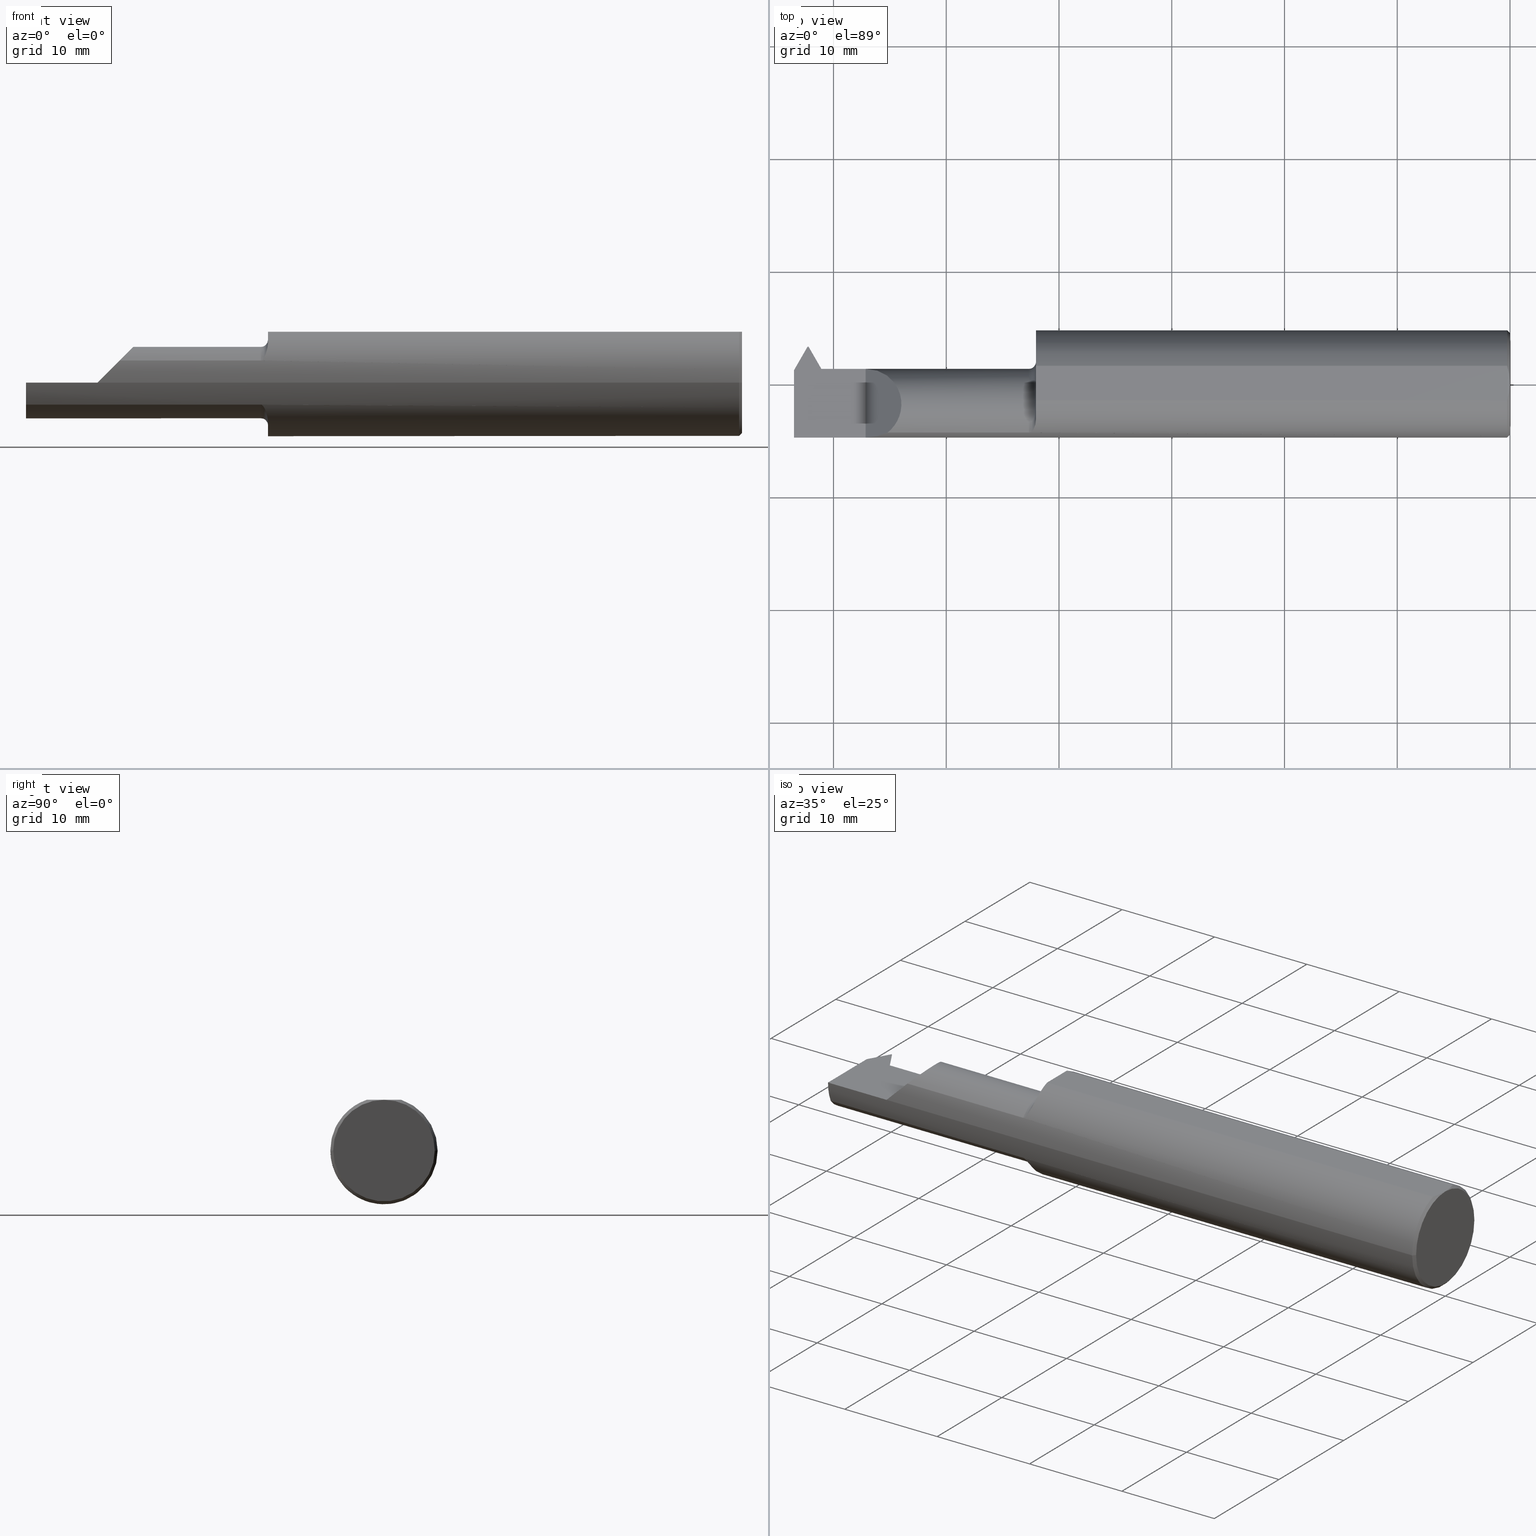
[diagram: canonical four-view strip — front | top / right | iso, engineering-drawing reading convention]
A machine part, canonical four-view strip (front | top / right | iso — engineering-drawing reading convention). The complete STEP part file that produces these views, byte-faithful:
ISO-10303-21;
HEADER;
FILE_DESCRIPTION (( 'STEP AP203' ),
    '1' );
FILE_NAME ('231891-LHTT320750.STEP',
    '2025-01-27T21:58:05',
    ( '' ),
    ( '' ),
    'SwSTEP 2.0',
    'SolidWorks 2024',
    '' );
FILE_SCHEMA (( 'CONFIG_CONTROL_DESIGN' ));
ENDSEC;

DATA;
#1 = EDGE_CURVE ( 'NONE', #763, #613, #610, .T. ) ;
#2 = DATE_AND_TIME ( #677, #97 ) ;
#3 = ORIENTED_EDGE ( 'NONE', *, *, #528, .F. ) ;
#4 = AXIS2_PLACEMENT_3D ( 'NONE', #838, #106, #846 ) ;
#5 = DIRECTION ( 'NONE',  ( 1.218297997402278970E-14, -0.7071067811865430208, -0.7071067811865521247 ) ) ;
#6 = VECTOR ( 'NONE', #79, 39.37007874015748143 ) ;
#7 = ORIENTED_EDGE ( 'NONE', *, *, #272, .F. ) ;
#8 = CARTESIAN_POINT ( 'NONE',  ( -2.500000000000000000, 6.123233995736767268E-17, 0.000000000000000000 ) ) ;
#9 = LINE ( 'NONE', #281, #607 ) ;
#10 = ORIENTED_EDGE ( 'NONE', *, *, #730, .T. ) ;
#11 = EDGE_CURVE ( 'NONE', #196, #712, #334, .T. ) ;
#12 = ADVANCED_FACE ( 'NONE', ( #621 ), #19, .T. ) ;
#13 = DIRECTION ( 'NONE',  ( -1.000000000000000000, 7.807390513315893590E-17, -0.000000000000000000 ) ) ;
#14 = FACE_OUTER_BOUND ( 'NONE', #628, .T. ) ;
#15 = ORIENTED_EDGE ( 'NONE', *, *, #445, .F. ) ;
#16 = CIRCLE ( 'NONE', #519, 0.1873499999999999888 ) ;
#17 = CARTESIAN_POINT ( 'NONE',  ( -2.399466679003209091, 0.05264999999999994684, 0.000000000000000000 ) ) ;
#18 = DIRECTION ( 'NONE',  ( 0.1143501000964209230, 0.1980601832175902521, 0.9734969021171833159 ) ) ;
#19 = PLANE ( 'NONE',  #548 ) ;
#20 = ADVANCED_FACE ( 'NONE', ( #482 ), #349, .F. ) ;
#21 = VECTOR ( 'NONE', #497, 39.37007874015748143 ) ;
#22 = ORIENTED_EDGE ( 'NONE', *, *, #346, .F. ) ;
#23 = CARTESIAN_POINT ( 'NONE',  ( 0.000000000000000000, 3.673940397442058882E-16, 0.000000000000000000 ) ) ;
#24 = DIRECTION ( 'NONE',  ( 0.000000000000000000, 1.000000000000000000, 0.000000000000000000 ) ) ;
#25 = ORIENTED_EDGE ( 'NONE', *, *, #329, .F. ) ;
#26 = AXIS2_PLACEMENT_3D ( 'NONE', #840, #380, #165 ) ;
#27 = CARTESIAN_POINT ( 'NONE',  ( -2.250000000000000000, -0.2500000000000000000, 0.000000000000000000 ) ) ;
#28 = DIRECTION ( 'NONE',  ( -1.251730929182319029E-33, 8.057486188172180538E-17, 1.000000000000000000 ) ) ;
#29 = CARTESIAN_POINT ( 'NONE',  ( -2.399999999999999911, 0.1306499999999998773, 8.875653457662611807E-19 ) ) ;
#30 = ORIENTED_EDGE ( 'NONE', *, *, #31, .T. ) ;
#31 = EDGE_CURVE ( 'NONE', #618, #571, #629, .T. ) ;
#32 = CARTESIAN_POINT ( 'NONE',  ( -2.500000000000000000, 0.2123500000000002053, 0.1773500000000001187 ) ) ;
#33 = AXIS2_PLACEMENT_3D ( 'NONE', #67, #338, #192 ) ;
#34 = CARTESIAN_POINT ( 'NONE',  ( -2.450491526677938126, 0.1160911906293524698, -0.03999999999999956368 ) ) ;
#35 = FACE_OUTER_BOUND ( 'NONE', #233, .T. ) ;
#36 = ORIENTED_EDGE ( 'NONE', *, *, #470, .T. ) ;
#37 = CARTESIAN_POINT ( 'NONE',  ( -2.399466679003209091, 0.05264999999999996072, -0.1250000000000000000 ) ) ;
#38 = CARTESIAN_POINT ( 'NONE',  ( -2.197245014477020586, -0.1817375716013221731, 0.05275498552297869931 ) ) ;
#39 = CARTESIAN_POINT ( 'NONE',  ( -2.409165208596790286, 0.7309542712158816347, 0.6464423631928178926 ) ) ;
#40 = EDGE_LOOP ( 'NONE', ( #433, #25, #30 ) ) ;
#41 = CARTESIAN_POINT ( 'NONE',  ( -2.500000000000000000, 6.123233995736767268E-17, 0.000000000000000000 ) ) ;
#42 = VECTOR ( 'NONE', #844, 39.37007874015748854 ) ;
#43 = PLANE ( 'NONE',  #759 ) ;
#44 = VERTEX_POINT ( 'NONE', #512 ) ;
#45 = PLANE ( 'NONE',  #582 ) ;
#46 = VECTOR ( 'NONE', #176, 39.37007874015748143 ) ;
#47 = VECTOR ( 'NONE', #546, 39.37007874015748143 ) ;
#48 = DIRECTION ( 'NONE',  ( -0.02328694095509177206, 0.3419273951315133786, 0.9394377972167885504 ) ) ;
#49 = ORIENTED_EDGE ( 'NONE', *, *, #470, .F. ) ;
#50 = AXIS2_PLACEMENT_3D ( 'NONE', #741, #28, #235 ) ;
#51 = CARTESIAN_POINT ( 'NONE',  ( -2.450491526677939458, 0.03109119062935314370, -0.1250000000000000000 ) ) ;
#52 = ORIENTED_EDGE ( 'NONE', *, *, #822, .T. ) ;
#53 = DIRECTION ( 'NONE',  ( -1.000000000000000000, -1.224646799147319927E-16, 0.000000000000000000 ) ) ;
#54 = PLANE ( 'NONE',  #533 ) ;
#55 = AXIS2_PLACEMENT_3D ( 'NONE', #65, #189, #476 ) ;
#56 = PERSON_AND_ORGANIZATION_ROLE ( 'creator' ) ;
#57 = VERTEX_POINT ( 'NONE', #772 ) ;
#58 = CARTESIAN_POINT ( 'NONE',  ( -2.399999999999999911, 0.03109119062935314370, -0.1250000000000000000 ) ) ;
#59 = LINE ( 'NONE', #129, #490 ) ;
#60 = EDGE_CURVE ( 'NONE', #63, #547, #147, .T. ) ;
#61 = AXIS2_PLACEMENT_3D ( 'NONE', #245, #525, #312 ) ;
#62 = VECTOR ( 'NONE', #539, 39.37007874015748143 ) ;
#63 = VERTEX_POINT ( 'NONE', #508 ) ;
#64 = PLANE ( 'NONE',  #748 ) ;
#65 = CARTESIAN_POINT ( 'NONE',  ( -1.780551890497774625, -1.028002113284995023, 0.000000000000000000 ) ) ;
#66 = ORIENTED_EDGE ( 'NONE', *, *, #810, .F. ) ;
#67 = CARTESIAN_POINT ( 'NONE',  ( -4.045269286869511293E-16, 0.05265000000001845981, 0.000000000000000000 ) ) ;
#68 = EDGE_CURVE ( 'NONE', #460, #227, #441, .T. ) ;
#69 =( NAMED_UNIT ( * ) PLANE_ANGLE_UNIT ( ) SI_UNIT ( $, .RADIAN. ) );
#70 = ORIENTED_EDGE ( 'NONE', *, *, #171, .F. ) ;
#71 = CYLINDRICAL_SURFACE ( 'NONE', #432, 0.1873499999999999610 ) ;
#72 = DIRECTION ( 'NONE',  ( -1.000000000000000000, 0.000000000000000000, -0.000000000000000000 ) ) ;
#73 = ORIENTED_EDGE ( 'NONE', *, *, #680, .F. ) ;
#74 = PLANE ( 'NONE',  #623 ) ;
#75 = CARTESIAN_POINT ( 'NONE',  ( -2.399466679003209091, -0.04048809197694935857, -0.1249999999999999861 ) ) ;
#76 = PRODUCT_DEFINITION ( 'UNKNOWN', '', #873, #596 ) ;
#77 = CARTESIAN_POINT ( 'NONE',  ( -2.396040671537939648, 0.05265000000000024521, -0.01683936468141946502 ) ) ;
#78 = EDGE_CURVE ( 'NONE', #731, #850, #209, .T. ) ;
#79 = DIRECTION ( 'NONE',  ( 1.000000000000000000, 1.224646799147352961E-16, -0.000000000000000000 ) ) ;
#80 = SHAPE_DEFINITION_REPRESENTATION ( #724, #686 ) ;
#81 = ORIENTED_EDGE ( 'NONE', *, *, #171, .T. ) ;
#82 = VECTOR ( 'NONE', #377, 39.37007874015748854 ) ;
#83 = CARTESIAN_POINT ( 'NONE',  ( -2.399165208596790499, 0.7309542712158816347, 0.6464423631928178926 ) ) ;
#84 = CARTESIAN_POINT ( 'NONE',  ( 5.167234455789520332E-16, -0.01026980879711896812, 0.1773500000000000909 ) ) ;
#85 = EDGE_CURVE ( 'NONE', #137, #571, #839, .T. ) ;
#86 = ORIENTED_EDGE ( 'NONE', *, *, #479, .T. ) ;
#87 = AXIS2_PLACEMENT_3D ( 'NONE', #388, #842, #707 ) ;
#88 = FACE_OUTER_BOUND ( 'NONE', #706, .T. ) ;
#89 = DIRECTION ( 'NONE',  ( -1.224646799147352961E-16, 1.000000000000000000, 0.000000000000000000 ) ) ;
#90 = CIRCLE ( 'NONE', #116, 0.1773500000000004795 ) ;
#91 = DIRECTION ( 'NONE',  ( 1.098490779351302641E-17, -0.7071067811865521247, 0.7071067811865429098 ) ) ;
#92 = ADVANCED_FACE ( 'NONE', ( #832 ), #168, .T. ) ;
#93 = CARTESIAN_POINT ( 'NONE',  ( -1.655422262237692843, -0.1340112273051909386, -0.1311235663431504217 ) ) ;
#94 = CARTESIAN_POINT ( 'NONE',  ( -0.009999999999999049580, -0.1873499999999995724, 2.294375778202565406E-17 ) ) ;
#95 = ORIENTED_EDGE ( 'NONE', *, *, #676, .T. ) ;
#96 = EDGE_CURVE ( 'NONE', #57, #556, #90, .T. ) ;
#97 = LOCAL_TIME ( 13, 58, 5.000000000000000000, #409 ) ;
#98 = CARTESIAN_POINT ( 'NONE',  ( 3.319098987389115832E-17, -0.1773500000000000909, 0.000000000000000000 ) ) ;
#99 = CARTESIAN_POINT ( 'NONE',  ( -1.661433375423614134, -0.1564664892255272222, -0.1032885322714726384 ) ) ;
#100 = PLANE ( 'NONE',  #295 ) ;
#101 = ORIENTED_EDGE ( 'NONE', *, *, #457, .F. ) ;
#102 = DIRECTION ( 'NONE',  ( -1.000000000000000000, 7.807390513315893590E-17, -0.000000000000000000 ) ) ;
#103 = CARTESIAN_POINT ( 'NONE',  ( -1.663468400737659003, -0.1602664485539584682, -0.09726338467661442555 ) ) ;
#104 = DIRECTION ( 'NONE',  ( -0.02328694095508679687, -0.3419273951315134341, -0.9394377972167885504 ) ) ;
#105 = ORIENTED_EDGE ( 'NONE', *, *, #68, .F. ) ;
#106 = DIRECTION ( 'NONE',  ( -1.000000000000000000, 7.807390513315893590E-17, -0.000000000000000000 ) ) ;
#107 = CARTESIAN_POINT ( 'NONE',  ( -2.500000000000000000, -0.03467546208265587931, -0.1191873701057065138 ) ) ;
#108 = EDGE_LOOP ( 'NONE', ( #155, #170, #248, #657 ) ) ;
#109 = AXIS2_PLACEMENT_3D ( 'NONE', #340, #536, #862 ) ;
#110 = ADVANCED_FACE ( 'NONE', ( #361 ), #701, .T. ) ;
#111 = ORIENTED_EDGE ( 'NONE', *, *, #85, .F. ) ;
#112 = CARTESIAN_POINT ( 'NONE',  ( -2.368077295567089902, -0.1116544449213614371, -0.1249999999999999861 ) ) ;
#113 = CARTESIAN_POINT ( 'NONE',  ( -1.655000000000000471, -0.07235000000000012255, 0.000000000000000000 ) ) ;
#114 = PERSON_AND_ORGANIZATION ( #805, #193 ) ;
#115 = ORIENTED_EDGE ( 'NONE', *, *, #353, .F. ) ;
#116 = AXIS2_PLACEMENT_3D ( 'NONE', #376, #641, #89 ) ;
#117 = DIRECTION ( 'NONE',  ( -0.4999999999999884537, -0.8660254037844452579, 8.357947745242410912E-17 ) ) ;
#118 = FACE_OUTER_BOUND ( 'NONE', #551, .T. ) ;
#119 = ORIENTED_EDGE ( 'NONE', *, *, #181, .F. ) ;
#120 = ADVANCED_FACE ( 'NONE', ( #631 ), #294, .F. ) ;
#121 = CARTESIAN_POINT ( 'NONE',  ( -2.451508473322062454, 0.1160911906293514845, -0.04000000000000077105 ) ) ;
#122 = ORIENTED_EDGE ( 'NONE', *, *, #344, .T. ) ;
#123 = FACE_OUTER_BOUND ( 'NONE', #687, .T. ) ;
#124 = VECTOR ( 'NONE', #379, 39.37007874015748143 ) ;
#125 = PLANE ( 'NONE',  #55 ) ;
#126 = ORIENTED_EDGE ( 'NONE', *, *, #216, .T. ) ;
#127 = EDGE_CURVE ( 'NONE', #841, #532, #767, .T. ) ;
#128 = ADVANCED_FACE ( 'NONE', ( #743 ), #427, .T. ) ;
#129 = CARTESIAN_POINT ( 'NONE',  ( -2.458422704432911221, 0.01911539105008689537, -0.1249999999999999861 ) ) ;
#130 = AXIS2_PLACEMENT_3D ( 'NONE', #614, #684, #354 ) ;
#131 = APPROVAL_ROLE ( '' ) ;
#132 = VERTEX_POINT ( 'NONE', #765 ) ;
#133 = CARTESIAN_POINT ( 'NONE',  ( -2.500000000000000000, -0.1873499999999999055, 0.000000000000000000 ) ) ;
#134 = CARTESIAN_POINT ( 'NONE',  ( -2.500000000000000000, -0.07235000000000016418, -0.1249999999999999861 ) ) ;
#135 = CARTESIAN_POINT ( 'NONE',  ( -1.787599684888146134, -1.032071159273469041, -0.04000000000000104861 ) ) ;
#136 = DIRECTION ( 'NONE',  ( 0.8486396879976065843, -0.4899623523104045808, 0.1993679344171975787 ) ) ;
#137 = VERTEX_POINT ( 'NONE', #483 ) ;
#138 = VECTOR ( 'NONE', #588, 39.37007874015748854 ) ;
#139 = DIRECTION ( 'NONE',  ( -1.000000000000000000, -1.224646799147352961E-16, 0.000000000000000000 ) ) ;
#140 = VECTOR ( 'NONE', #144, 39.37007874015748143 ) ;
#141 = ORIENTED_EDGE ( 'NONE', *, *, #96, .T. ) ;
#142 = FACE_OUTER_BOUND ( 'NONE', #40, .T. ) ;
#143 = CARTESIAN_POINT ( 'NONE',  ( -0.0008974174807281316358, -0.02044204845470683207, 0.1773500000000000631 ) ) ;
#144 = DIRECTION ( 'NONE',  ( 0.000000000000000000, 1.000000000000000000, -8.057486188172181771E-17 ) ) ;
#145 = CARTESIAN_POINT ( 'NONE',  ( -1.024723209186555973E-17, 0.1773500000000008403, 2.233143438245201271E-17 ) ) ;
#146 = CARTESIAN_POINT ( 'NONE',  ( -2.250000000000000000, 0.05265000000000022440, 0.000000000000000000 ) ) ;
#147 = LINE ( 'NONE', #157, #639 ) ;
#148 = AXIS2_PLACEMENT_3D ( 'NONE', #384, #102, #779 ) ;
#149 = EDGE_CURVE ( 'NONE', #689, #311, #358, .T. ) ;
#150 = VECTOR ( 'NONE', #865, 39.37007874015748143 ) ;
#151 = CARTESIAN_POINT ( 'NONE',  ( -1.655000000000000471, -0.1232518659284808082, 0.1410992560044136979 ) ) ;
#152 = PLANE ( 'NONE',  #723 ) ;
#153 = CARTESIAN_POINT ( 'NONE',  ( -2.409165208596790286, 0.7309542712158816347, 0.6464423631928178926 ) ) ;
#154 = VECTOR ( 'NONE', #5, 39.37007874015748143 ) ;
#155 = ORIENTED_EDGE ( 'NONE', *, *, #528, .T. ) ;
#156 = DIRECTION ( 'NONE',  ( -1.000000000000000000, 7.807390513315893590E-17, -0.000000000000000000 ) ) ;
#157 = CARTESIAN_POINT ( 'NONE',  ( -1.895948109502243684, 1.094626151390651891, 0.000000000000000000 ) ) ;
#158 = DIRECTION ( 'NONE',  ( -1.000000000000000000, -1.224646799147319927E-16, 0.000000000000000000 ) ) ;
#159 = ORIENTED_EDGE ( 'NONE', *, *, #149, .F. ) ;
#160 = SECURITY_CLASSIFICATION ( '', '', #589 ) ;
#161 = CARTESIAN_POINT ( 'NONE',  ( -2.500000000000000000, -0.06039039658753654616, 0.1773500000000000909 ) ) ;
#162 = ADVANCED_FACE ( 'NONE', ( #560 ), #320, .T. ) ;
#163 = EDGE_CURVE ( 'NONE', #227, #841, #608, .T. ) ;
#164 = DIRECTION ( 'NONE',  ( -1.000000000000000000, 7.807390513315893590E-17, -0.000000000000000000 ) ) ;
#165 = DIRECTION ( 'NONE',  ( 0.000000000000000000, -1.000000000000000000, 2.664535259100375303E-15 ) ) ;
#166 = ORIENTED_EDGE ( 'NONE', *, *, #848, .T. ) ;
#167 = DIRECTION ( 'NONE',  ( 1.000000000000000000, 1.224646799147352961E-16, -0.000000000000000000 ) ) ;
#168 = CYLINDRICAL_SURFACE ( 'NONE', #478, 0.1873499999999999610 ) ;
#169 = DIRECTION ( 'NONE',  ( 0.000000000000000000, 0.7071067811865415775, -0.7071067811865535679 ) ) ;
#170 = ORIENTED_EDGE ( 'NONE', *, *, #829, .T. ) ;
#171 = EDGE_CURVE ( 'NONE', #559, #196, #493, .T. ) ;
#172 = DIRECTION ( 'NONE',  ( 0.000000000000000000, -1.000000000000000000, 0.000000000000000000 ) ) ;
#173 = PRODUCT ( '231891-LHTT320750', '231891-LHTT320750', '', ( #331 ) ) ;
#174 = LINE ( 'NONE', #570, #82 ) ;
#175 = EDGE_LOOP ( 'NONE', ( #141, #549, #450 ) ) ;
#176 = DIRECTION ( 'NONE',  ( 5.520658775337235997E-17, 0.7071067811865535679, 0.7071067811865415775 ) ) ;
#177 = LINE ( 'NONE', #573, #780 ) ;
#178 = COORDINATED_UNIVERSAL_TIME_OFFSET ( 8, 0, .BEHIND. ) ;
#179 = VERTEX_POINT ( 'NONE', #145 ) ;
#180 = DIRECTION ( 'NONE',  ( 1.000000000000000000, -7.807390513315893590E-17, 0.000000000000000000 ) ) ;
#181 = EDGE_CURVE ( 'NONE', #57, #414, #462, .T. ) ;
#182 = LINE ( 'NONE', #728, #710 ) ;
#183 = CIRCLE ( 'NONE', #818, 0.1873499999999999610 ) ;
#184 = ADVANCED_FACE ( 'NONE', ( #285 ), #278, .T. ) ;
#185 = DATE_AND_TIME ( #673, #856 ) ;
#186 = EDGE_LOOP ( 'NONE', ( #637, #467, #341, #498, #254, #777, #682 ) ) ;
#187 = UNCERTAINTY_MEASURE_WITH_UNIT (LENGTH_MEASURE( 1.000000000000000082E-05 ), #725, 'distance_accuracy_value', 'NONE');
#188 = CARTESIAN_POINT ( 'NONE',  ( 1.147187889101284552E-17, 1.404899976408496659E-33, 0.000000000000000000 ) ) ;
#189 = DIRECTION ( 'NONE',  ( -0.8486396879975990348, -0.4899623523104176259, 0.1993679344171976620 ) ) ;
#190 = ORIENTED_EDGE ( 'NONE', *, *, #626, .T. ) ;
#191 = LINE ( 'NONE', #58, #419 ) ;
#192 = DIRECTION ( 'NONE',  ( 0.000000000000000000, -0.1993679344171976064, -0.9799247046208294787 ) ) ;
#193 = ORGANIZATION ( 'UNSPECIFIED', 'UNSPECIFIED', '' ) ;
#194 = ADVANCED_FACE ( 'NONE', ( #223 ), #415, .T. ) ;
#195 = CARTESIAN_POINT ( 'NONE',  ( -1.680000000000000160, -0.1707639599170689693, 0.07706940050007969611 ) ) ;
#196 = VERTEX_POINT ( 'NONE', #17 ) ;
#197 = CARTESIAN_POINT ( 'NONE',  ( -2.300000000000000266, -0.04048809197694935857, -0.1249999999999999861 ) ) ;
#198 = AXIS2_PLACEMENT_3D ( 'NONE', #736, #819, #257 ) ;
#199 = CIRCLE ( 'NONE', #371, 0.1773500000000004795 ) ;
#200 =( NAMED_UNIT ( * ) SI_UNIT ( $, .STERADIAN. ) SOLID_ANGLE_UNIT ( ) );
#201 = AXIS2_PLACEMENT_3D ( 'NONE', #32, #252, #640 ) ;
#202 = ORIENTED_EDGE ( 'NONE', *, *, #383, .F. ) ;
#203 = CARTESIAN_POINT ( 'NONE',  ( -2.500000000000000000, -0.2500000000000000000, 0.000000000000000000 ) ) ;
#204 = ADVANCED_FACE ( 'NONE', ( #88 ), #74, .T. ) ;
#205 = DIMENSIONAL_EXPONENTS ( 1.000000000000000000, 0.000000000000000000, 0.000000000000000000, 0.000000000000000000, 0.000000000000000000, 0.000000000000000000, 0.000000000000000000 ) ;
#206 = DIRECTION ( 'NONE',  ( 7.807390513315893590E-17, 1.000000000000000000, 0.000000000000000000 ) ) ;
#207 = EDGE_CURVE ( 'NONE', #587, #606, #760, .T. ) ;
#208 = CARTESIAN_POINT ( 'NONE',  ( -2.250000000000000000, -0.2500000000000000000, 0.000000000000000000 ) ) ;
#209 = B_SPLINE_CURVE_WITH_KNOTS ( 'NONE', 3,
 ( #246, #843, #781, #309, #634, #574, #304, #103, #99, #698, #437, #93, #518, #569 ),
 .UNSPECIFIED., .F., .F.,
 ( 4, 2, 2, 2, 2, 2, 4 ),
 ( 1.958244471939480462E-07, 0.0001405465607227700199, 0.0002808972969983460598, 0.0005615987695494991695, 0.001123001714651806473, 0.001684404659754113777, 0.002245807604856420864 ),
 .UNSPECIFIED. ) ;
#210 = CARTESIAN_POINT ( 'NONE',  ( -2.389529785684763041, 0.04271310668155375856, -0.04884139106116385659 ) ) ;
#211 = ORIENTED_EDGE ( 'NONE', *, *, #668, .F. ) ;
#212 = CARTESIAN_POINT ( 'NONE',  ( -0.006852151730285416242, 0.05062478141268297177, 0.1773500000000000909 ) ) ;
#213 = CARTESIAN_POINT ( 'NONE',  ( -0.009999999999999073866, -0.06039039658753624085, 0.1773500000000000909 ) ) ;
#214 = VERTEX_POINT ( 'NONE', #151 ) ;
#215 = VECTOR ( 'NONE', #452, 39.37007874015748143 ) ;
#216 = EDGE_CURVE ( 'NONE', #689, #251, #851, .T. ) ;
#217 = VECTOR ( 'NONE', #448, 39.37007874015748143 ) ;
#218 = DIRECTION ( 'NONE',  ( 1.224646799147319927E-16, -1.000000000000000000, 0.000000000000000000 ) ) ;
#219 = LINE ( 'NONE', #363, #595 ) ;
#220 = AXIS2_PLACEMENT_3D ( 'NONE', #500, #754, #820 ) ;
#221 = ORIENTED_EDGE ( 'NONE', *, *, #626, .F. ) ;
#222 = EDGE_LOOP ( 'NONE', ( #237, #773, #243, #119 ) ) ;
#223 = FACE_OUTER_BOUND ( 'NONE', #284, .T. ) ;
#224 = CARTESIAN_POINT ( 'NONE',  ( -2.420783230410803011, 0.02438890395773846489, -0.1389077249179000439 ) ) ;
#225 = CC_DESIGN_PERSON_AND_ORGANIZATION_ASSIGNMENT ( #531, #756, ( #160 ) ) ;
#226 = PERSON_AND_ORGANIZATION ( #805, #193 ) ;
#227 = VERTEX_POINT ( 'NONE', #288 ) ;
#228 = EDGE_CURVE ( 'NONE', #678, #618, #343, .T. ) ;
#229 = APPROVAL_PERSON_ORGANIZATION ( #226, #421, #762 ) ;
#230 = CARTESIAN_POINT ( 'NONE',  ( -0.0009167640511158797918, 0.02059964124962108956, 0.1773500000000000909 ) ) ;
#231 = DIRECTION ( 'NONE',  ( 0.9799247046208295897, -7.650654842620542482E-17, 0.1993679344171976342 ) ) ;
#232 = AXIS2_PLACEMENT_3D ( 'NONE', #113, #156, #172 ) ;
#233 = EDGE_LOOP ( 'NONE', ( #7, #401, #456, #95, #190, #858 ) ) ;
#234 = CARTESIAN_POINT ( 'NONE',  ( -2.399165208596790499, 0.04271310668155458429, -0.04884139106116149043 ) ) ;
#235 = DIRECTION ( 'NONE',  ( 0.000000000000000000, -1.000000000000000000, 8.057486188172180538E-17 ) ) ;
#236 = DIRECTION ( 'NONE',  ( 1.459813011021671533E-17, -0.9396926207859104263, 0.3420201433256632728 ) ) ;
#237 = ORIENTED_EDGE ( 'NONE', *, *, #308, .F. ) ;
#238 = ADVANCED_FACE ( 'NONE', ( #142 ), #611, .F. ) ;
#239 = EDGE_CURVE ( 'NONE', #267, #752, #436, .T. ) ;
#240 = FACE_OUTER_BOUND ( 'NONE', #410, .T. ) ;
#241 = CARTESIAN_POINT ( 'NONE',  ( -2.039733339501604625, -0.1707639599170687750, 0.07706940050007952958 ) ) ;
#242 = CARTESIAN_POINT ( 'NONE',  ( -1.676415813383502984, -0.1703907533020768139, 0.07790009962036420488 ) ) ;
#243 = ORIENTED_EDGE ( 'NONE', *, *, #479, .F. ) ;
#244 = APPROVAL_PERSON_ORGANIZATION ( #738, #395, #131 ) ;
#245 = CARTESIAN_POINT ( 'NONE',  ( 1.147187889101280084E-17, 3.673940397442058882E-16, 0.000000000000000000 ) ) ;
#246 = CARTESIAN_POINT ( 'NONE',  ( -1.680000000000000160, -0.1707639599170690248, -0.07706940050007969611 ) ) ;
#247 = CARTESIAN_POINT ( 'NONE',  ( -2.307739629002622195, -0.03907705000058617206, -0.4508528547498036887 ) ) ;
#248 = ORIENTED_EDGE ( 'NONE', *, *, #757, .T. ) ;
#249 = CARTESIAN_POINT ( 'NONE',  ( -0.009999999999999073866, 0.06039039658753692086, 0.1773500000000000909 ) ) ;
#250 = FACE_OUTER_BOUND ( 'NONE', #108, .T. ) ;
#251 = VERTEX_POINT ( 'NONE', #690 ) ;
#252 = DIRECTION ( 'NONE',  ( -2.498191301712524670E-33, 1.608104540654733016E-16, -1.000000000000000000 ) ) ;
#253 = CARTESIAN_POINT ( 'NONE',  ( -1.661440222444133141, -0.1564830431723805981, 0.1032649757824550263 ) ) ;
#254 = ORIENTED_EDGE ( 'NONE', *, *, #581, .F. ) ;
#255 = ADVANCED_FACE ( 'NONE', ( #557 ), #263, .T. ) ;
#256 = CARTESIAN_POINT ( 'NONE',  ( 5.980243171161538069E-17, 0.04451190802307516958, -0.03999999999997690819 ) ) ;
#257 = DIRECTION ( 'NONE',  ( 0.000000000000000000, -1.775701195881767246E-15, 1.000000000000000000 ) ) ;
#258 = EDGE_CURVE ( 'NONE', #460, #606, #191, .T. ) ;
#259 = CARTESIAN_POINT ( 'NONE',  ( -1.655000000000000471, -0.1232518659295081948, -0.1410992560040430499 ) ) ;
#260 = ORIENTED_EDGE ( 'NONE', *, *, #496, .T. ) ;
#261 = CARTESIAN_POINT ( 'NONE',  ( -2.500000000000000000, -0.07235000000000005316, 0.000000000000000000 ) ) ;
#262 = EDGE_LOOP ( 'NONE', ( #786, #487, #52, #727, #802, #166, #633 ) ) ;
#263 = CONICAL_SURFACE ( 'NONE', #753, 0.1773500000000004795, 0.7853981633974688181 ) ;
#264 = PRODUCT_RELATED_PRODUCT_CATEGORY ( 'detail', '', ( #173 ) ) ;
#265 = DIRECTION ( 'NONE',  ( -1.000000000000000000, 0.000000000000000000, -0.000000000000000000 ) ) ;
#266 = EDGE_CURVE ( 'NONE', #850, #689, #866, .T. ) ;
#267 = VERTEX_POINT ( 'NONE', #834 ) ;
#268 = APPLICATION_CONTEXT ( 'configuration controlled 3d designs of mechanical parts and assemblies' ) ;
#269 = DIRECTION ( 'NONE',  ( -1.224646799147352961E-16, 1.000000000000000000, 0.000000000000000000 ) ) ;
#270 = DATE_TIME_ROLE ( 'creation_date' ) ;
#271 = EDGE_LOOP ( 'NONE', ( #790, #872, #36, #279, #647, #417, #70, #66 ) ) ;
#272 = EDGE_CURVE ( 'NONE', #301, #267, #583, .T. ) ;
#273 = PLANE ( 'NONE',  #33 ) ;
#274 = CALENDAR_DATE ( 2025, 27, 1 ) ;
#275 = CARTESIAN_POINT ( 'NONE',  ( -2.399466679003209091, 0.05264999999999994684, 0.000000000000000000 ) ) ;
#276 = EDGE_LOOP ( 'NONE', ( #391, #486 ) ) ;
#277 = AXIS2_PLACEMENT_3D ( 'NONE', #688, #434, #420 ) ;
#278 = PLANE ( 'NONE',  #130 ) ;
#279 = ORIENTED_EDGE ( 'NONE', *, *, #228, .T. ) ;
#280 = CARTESIAN_POINT ( 'NONE',  ( -2.451508473322062454, 0.1160911906293516094, -0.04000000000000044492 ) ) ;
#281 = CARTESIAN_POINT ( 'NONE',  ( -2.500000000000000000, 0.7185437658794097127, 0.6464423631928178926 ) ) ;
#282 = EDGE_CURVE ( 'NONE', #532, #460, #720, .T. ) ;
#283 = DATE_AND_TIME ( #815, #352 ) ;
#284 = EDGE_LOOP ( 'NONE', ( #692, #444, #837, #367 ) ) ;
#285 = FACE_OUTER_BOUND ( 'NONE', #719, .T. ) ;
#286 = CARTESIAN_POINT ( 'NONE',  ( -1.895948109502243684, 1.094626151390651891, 0.000000000000000000 ) ) ;
#287 = EDGE_LOOP ( 'NONE', ( #211, #739, #202, #863 ) ) ;
#288 = CARTESIAN_POINT ( 'NONE',  ( -2.450491526677938126, 0.1160911906293522339, -0.03999999999999936245 ) ) ;
#289 = LINE ( 'NONE', #558, #215 ) ;
#290 = CLOSED_SHELL ( 'NONE', ( #255, #635, #110, #92, #204, #655, #12, #20, #335, #867, #638, #362, #659, #670, #238, #543, #694, #162, #535, #517, #799, #120, #194, #793, #184, #128 ) ) ;
#291 = CARTESIAN_POINT ( 'NONE',  ( -2.399466679003209091, 0.05264999999999996766, 0.000000000000000000 ) ) ;
#292 = ORIENTED_EDGE ( 'NONE', *, *, #60, .T. ) ;
#293 = DIRECTION ( 'NONE',  ( -0.000000000000000000, 0.000000000000000000, 1.000000000000000000 ) ) ;
#294 = PLANE ( 'NONE',  #672 ) ;
#295 = AXIS2_PLACEMENT_3D ( 'NONE', #29, #236, #509 ) ;
#296 = ORIENTED_EDGE ( 'NONE', *, *, #404, .F. ) ;
#297 = LINE ( 'NONE', #224, #861 ) ;
#298 = DIRECTION ( 'NONE',  ( 0.000000000000000000, 1.000000000000000000, 0.000000000000000000 ) ) ;
#299 = EDGE_CURVE ( 'NONE', #311, #758, #183, .T. ) ;
#300 = CARTESIAN_POINT ( 'NONE',  ( -2.409165208596789842, 0.04451190802305234756, -0.03999999999999845346 ) ) ;
#301 = VERTEX_POINT ( 'NONE', #75 ) ;
#302 = AXIS2_PLACEMENT_3D ( 'NONE', #471, #675, #342 ) ;
#303 = CARTESIAN_POINT ( 'NONE',  ( -2.500000000000000000, -0.07235000000000006704, 0.000000000000000000 ) ) ;
#304 = CARTESIAN_POINT ( 'NONE',  ( -1.667677439423820074, -0.1652001307534588792, -0.08843250989739263879 ) ) ;
#305 = LINE ( 'NONE', #313, #382 ) ;
#306 = ORIENTED_EDGE ( 'NONE', *, *, #266, .T. ) ;
#307 = CARTESIAN_POINT ( 'NONE',  ( -2.250000000000000000, 0.05265000000000022440, 0.000000000000000000 ) ) ;
#308 = EDGE_CURVE ( 'NONE', #179, #57, #199, .T. ) ;
#309 = CARTESIAN_POINT ( 'NONE',  ( -1.673556805690880722, -0.1693764864286271543, -0.08008164902639378080 ) ) ;
#310 = CARTESIAN_POINT ( 'NONE',  ( -1.657006704648574802, -0.1436305184912887167, 0.1205106202209918209 ) ) ;
#311 = VERTEX_POINT ( 'NONE', #821 ) ;
#312 = DIRECTION ( 'NONE',  ( -1.224646799147352961E-16, 1.000000000000000000, 0.000000000000000000 ) ) ;
#313 = CARTESIAN_POINT ( 'NONE',  ( -1.655000000000000249, 0.2123500000000001220, 0.1773500000000001187 ) ) ;
#314 = EDGE_LOOP ( 'NONE', ( #15, #603, #576 ) ) ;
#315 = DIRECTION ( 'NONE',  ( -1.000000000000000000, -1.224646799147319927E-16, 0.000000000000000000 ) ) ;
#316 = CARTESIAN_POINT ( 'NONE',  ( -2.500000000000000000, 6.123233995736767268E-17, 0.000000000000000000 ) ) ;
#317 = EDGE_CURVE ( 'NONE', #464, #571, #426, .T. ) ;
#318 = CARTESIAN_POINT ( 'NONE',  ( -1.655000000000000471, -0.1232518659284808082, 0.1410992560044136979 ) ) ;
#319 = ORIENTED_EDGE ( 'NONE', *, *, #496, .F. ) ;
#320 = CONICAL_SURFACE ( 'NONE', #699, 0.1773500000000004795, 0.7853981633974688181 ) ;
#321 = LINE ( 'NONE', #511, #138 ) ;
#322 = PERSON_AND_ORGANIZATION_ROLE ( 'design_supplier' ) ;
#323 = EDGE_LOOP ( 'NONE', ( #537, #386, #406, #469 ) ) ;
#324 = CARTESIAN_POINT ( 'NONE',  ( -1.655000000000000249, -0.06039039658753644207, 0.1773500000000000909 ) ) ;
#325 = VECTOR ( 'NONE', #104, 39.37007874015748854 ) ;
#326 = EDGE_LOOP ( 'NONE', ( #768, #545, #520, #564, #504 ) ) ;
#327 = CC_DESIGN_DATE_AND_TIME_ASSIGNMENT ( #481, #609, ( #160 ) ) ;
#328 = DIRECTION ( 'NONE',  ( -1.000000000000000000, -1.553500558300393113E-17, -0.000000000000000000 ) ) ;
#329 = EDGE_CURVE ( 'NONE', #618, #464, #766, .T. ) ;
#330 = CARTESIAN_POINT ( 'NONE',  ( -2.500000000000000000, -0.05289859731342118343, -0.1249999999999999306 ) ) ;
#331 = MECHANICAL_CONTEXT ( 'NONE', #268, 'mechanical' ) ;
#332 = EDGE_LOOP ( 'NONE', ( #827, #816, #524, #491, #10 ) ) ;
#333 = DIRECTION ( 'NONE',  ( 1.000000000000000000, 1.224646799147352961E-16, -0.000000000000000000 ) ) ;
#334 =( BOUNDED_CURVE ( )  B_SPLINE_CURVE ( 3, ( #275, #77, #425, #210 ),
 .UNSPECIFIED., .F., .F. ) 
 B_SPLINE_CURVE_WITH_KNOTS ( ( 4, 4 ),
 ( 1.570796326794896780, 1.972222054753630660 ),
 .UNSPECIFIED. ) 
 CURVE ( )  GEOMETRIC_REPRESENTATION_ITEM ( )  RATIONAL_B_SPLINE_CURVE ( ( 1.000000000000000000, 0.9866164697472170619, 0.9866164697472170619, 1.000000000000000000 ) ) 
 REPRESENTATION_ITEM ( '' )  );
#335 = ADVANCED_FACE ( 'NONE', ( #14 ), #152, .F. ) ;
#336 = LENGTH_MEASURE_WITH_UNIT ( LENGTH_MEASURE( 0.02539999999999999897 ), #666 );
#337 = VERTEX_POINT ( 'NONE', #616 ) ;
#338 = DIRECTION ( 'NONE',  ( 7.529077513857417135E-15, -0.9799247046208295897, 0.1993679344171976342 ) ) ;
#339 = CC_DESIGN_APPROVAL ( #421, ( #160 ) ) ;
#340 = CARTESIAN_POINT ( 'NONE',  ( 0.000000000000000000, 0.000000000000000000, 0.000000000000000000 ) ) ;
#341 = ORIENTED_EDGE ( 'NONE', *, *, #617, .T. ) ;
#342 = DIRECTION ( 'NONE',  ( 1.224646799147319927E-16, -1.000000000000000000, 0.000000000000000000 ) ) ;
#343 = LINE ( 'NONE', #809, #6 ) ;
#344 = EDGE_CURVE ( 'NONE', #196, #464, #355, .T. ) ;
#345 = ORIENTED_EDGE ( 'NONE', *, *, #787, .F. ) ;
#346 = EDGE_CURVE ( 'NONE', #841, #559, #297, .T. ) ;
#347 = DIRECTION ( 'NONE',  ( 1.224646799147352961E-16, -1.000000000000000000, 0.000000000000000000 ) ) ;
#348 = CALENDAR_DATE ( 2025, 27, 1 ) ;
#349 = PLANE ( 'NONE',  #50 ) ;
#350 = DIRECTION ( 'NONE',  ( -0.7071067811865513475, 0.000000000000000000, -0.7071067811865435759 ) ) ;
#351 = ORIENTED_EDGE ( 'NONE', *, *, #11, .F. ) ;
#352 = LOCAL_TIME ( 13, 58, 5.000000000000000000, #416 ) ;
#353 = EDGE_CURVE ( 'NONE', #439, #731, #219, .T. ) ;
#354 = DIRECTION ( 'NONE',  ( -0.5000000000000094369, 0.000000000000000000, -0.8660254037844330455 ) ) ;
#355 = LINE ( 'NONE', #428, #735 ) ;
#356 = ORIENTED_EDGE ( 'NONE', *, *, #624, .T. ) ;
#357 = CIRCLE ( 'NONE', #87, 0.1873499999999999610 ) ;
#358 = LINE ( 'NONE', #550, #21 ) ;
#359 = CARTESIAN_POINT ( 'NONE',  ( -2.060312847100502331, -0.08257136335451466247, 0.1896871528994956146 ) ) ;
#360 = VECTOR ( 'NONE', #488, 39.37007874015748143 ) ;
#361 = FACE_OUTER_BOUND ( 'NONE', #262, .T. ) ;
#362 = ADVANCED_FACE ( 'NONE', ( #553 ), #612, .F. ) ;
#363 = CARTESIAN_POINT ( 'NONE',  ( -2.039733339501604625, -0.1707639599170687750, -0.07706940050007952958 ) ) ;
#364 = DIRECTION ( 'NONE',  ( 0.000000000000000000, -0.7071067811865535679, -0.7071067811865415775 ) ) ;
#365 = LOCAL_TIME ( 13, 58, 5.000000000000000000, #178 ) ;
#366 = DIRECTION ( 'NONE',  ( 0.000000000000000000, -0.1993679344171976064, -0.9799247046208294787 ) ) ;
#367 = ORIENTED_EDGE ( 'NONE', *, *, #207, .T. ) ;
#368 = CARTESIAN_POINT ( 'NONE',  ( -2.449500000000000899, 0.1306500000000000439, 0.000000000000000000 ) ) ;
#369 = DIRECTION ( 'NONE',  ( 1.219913341087421335E-14, 0.7071067811865430208, 0.7071067811865521247 ) ) ;
#370 = CARTESIAN_POINT ( 'NONE',  ( -2.399165208596790499, 0.05265000000000075869, 3.601282847639204660E-15 ) ) ;
#371 = AXIS2_PLACEMENT_3D ( 'NONE', #761, #485, #700 ) ;
#372 = ORIENTED_EDGE ( 'NONE', *, *, #346, .T. ) ;
#373 = EDGE_CURVE ( 'NONE', #44, #613, #9, .T. ) ;
#374 = DIRECTION ( 'NONE',  ( -7.807390513315893590E-17, -1.000000000000000000, 8.057486188172180538E-17 ) ) ;
#375 = VECTOR ( 'NONE', #369, 39.37007874015748143 ) ;
#376 = CARTESIAN_POINT ( 'NONE',  ( 1.147187889101280084E-17, 3.673940397442058882E-16, 0.000000000000000000 ) ) ;
#377 = DIRECTION ( 'NONE',  ( 0.5000000000000027756, -0.8660254037844370423, 0.000000000000000000 ) ) ;
#378 = ORIENTED_EDGE ( 'NONE', *, *, #572, .T. ) ;
#379 = DIRECTION ( 'NONE',  ( 1.224646799147352961E-16, -1.000000000000000000, 0.000000000000000000 ) ) ;
#380 = DIRECTION ( 'NONE',  ( 1.000000000000000000, -7.807390513315893590E-17, 0.000000000000000000 ) ) ;
#381 = ORIENTED_EDGE ( 'NONE', *, *, #808, .F. ) ;
#382 = VECTOR ( 'NONE', #385, 39.37007874015748143 ) ;
#383 = EDGE_CURVE ( 'NONE', #132, #57, #652, .T. ) ;
#384 = CARTESIAN_POINT ( 'NONE',  ( -1.680000000000000160, -0.07235000000000010867, 0.000000000000000000 ) ) ;
#385 = DIRECTION ( 'NONE',  ( 7.807390513315893590E-17, 1.000000000000000000, 1.608104540654733016E-16 ) ) ;
#386 = ORIENTED_EDGE ( 'NONE', *, *, #423, .F. ) ;
#387 = TOROIDAL_SURFACE ( 'NONE', #4, 0.1500000000000002998, 0.02499999999999981057 ) ;
#388 = CARTESIAN_POINT ( 'NONE',  ( -0.009999999999999073866, 3.661693929450587103E-16, 0.000000000000000000 ) ) ;
#389 = CIRCLE ( 'NONE', #503, 0.1250000000000000278 ) ;
#390 = PERSON_AND_ORGANIZATION_ROLE ( 'creator' ) ;
#391 = ORIENTED_EDGE ( 'NONE', *, *, #11, .T. ) ;
#392 = AXIS2_PLACEMENT_3D ( 'NONE', #565, #627, #24 ) ;
#393 = CARTESIAN_POINT ( 'NONE',  ( -2.399466679003209091, 0.06858095401152611292, -0.01593095401152641935 ) ) ;
#394 = DIRECTION ( 'NONE',  ( 0.000000000000000000, 0.000000000000000000, -1.000000000000000000 ) ) ;
#395 = APPROVAL ( #544, 'UNSPECIFIED' ) ;
#396 = APPROVAL_DATE_TIME ( #602, #454 ) ;
#397 = ORIENTED_EDGE ( 'NONE', *, *, #617, .F. ) ;
#398 = FACE_OUTER_BOUND ( 'NONE', #593, .T. ) ;
#399 = LOCAL_TIME ( 13, 58, 5.000000000000000000, #745 ) ;
#400 = APPLICATION_PROTOCOL_DEFINITION ( 'international standard', 'config_control_design', 1994, #268 ) ;
#401 = ORIENTED_EDGE ( 'NONE', *, *, #713, .T. ) ;
#402 = DIRECTION ( 'NONE',  ( 1.000000000000000000, 1.224646799147352961E-16, -0.000000000000000000 ) ) ;
#403 = VECTOR ( 'NONE', #374, 39.37007874015748143 ) ;
#404 = EDGE_CURVE ( 'NONE', #44, #587, #289, .T. ) ;
#405 = VECTOR ( 'NONE', #794, 39.37007874015748143 ) ;
#406 = ORIENTED_EDGE ( 'NONE', *, *, #668, .T. ) ;
#407 = VECTOR ( 'NONE', #364, 39.37007874015748143 ) ;
#408 = CARTESIAN_POINT ( 'NONE',  ( -2.300000000000000266, -0.07235000000000015030, -0.1250000000000000000 ) ) ;
#409 = COORDINATED_UNIVERSAL_TIME_OFFSET ( 8, 0, .BEHIND. ) ;
#410 = EDGE_LOOP ( 'NONE', ( #580, #554, #319, #796 ) ) ;
#411 = CARTESIAN_POINT ( 'NONE',  ( -2.500000000000000000, 6.123233995736767268E-17, 0.000000000000000000 ) ) ;
#412 = VECTOR ( 'NONE', #48, 39.37007874015748854 ) ;
#413 = APPROVAL_STATUS ( 'not_yet_approved' ) ;
#414 = VERTEX_POINT ( 'NONE', #249 ) ;
#415 = PLANE ( 'NONE',  #220 ) ;
#416 = COORDINATED_UNIVERSAL_TIME_OFFSET ( 8, 0, .BEHIND. ) ;
#417 = ORIENTED_EDGE ( 'NONE', *, *, #344, .F. ) ;
#418 = ORIENTED_EDGE ( 'NONE', *, *, #163, .T. ) ;
#419 = VECTOR ( 'NONE', #328, 39.37007874015748143 ) ;
#420 = DIRECTION ( 'NONE',  ( 0.000000000000000000, -1.000000000000000000, 0.000000000000000000 ) ) ;
#421 = APPROVAL ( #413, 'UNSPECIFIED' ) ;
#422 = ORIENTED_EDGE ( 'NONE', *, *, #299, .T. ) ;
#423 = EDGE_CURVE ( 'NONE', #556, #179, #708, .T. ) ;
#424 = CARTESIAN_POINT ( 'NONE',  ( -0.004345633232307596558, 0.04072602595449471841, 0.1773500000000000909 ) ) ;
#425 = CARTESIAN_POINT ( 'NONE',  ( -2.392683442184507570, 0.04929277064656741730, -0.03334067414286177172 ) ) ;
#426 =( BOUNDED_CURVE ( )  B_SPLINE_CURVE ( 3, ( #146, #826, #359, #501 ),
 .UNSPECIFIED., .F., .T. ) 
 B_SPLINE_CURVE_WITH_KNOTS ( ( 4, 4 ),
 ( 1.570796326794896558, 4.048029203480146165 ),
 .UNSPECIFIED. ) 
 CURVE ( )  GEOMETRIC_REPRESENTATION_ITEM ( )  RATIONAL_B_SPLINE_CURVE ( ( 1.000000000000000000, 0.5507363490864389810, 0.5507363490864389810, 1.000000000000000000 ) ) 
 REPRESENTATION_ITEM ( '' )  );
#427 = PLANE ( 'NONE',  #784 ) ;
#428 = CARTESIAN_POINT ( 'NONE',  ( -2.500000000000000000, 0.05265000000000022440, 0.000000000000000000 ) ) ;
#429 = EDGE_CURVE ( 'NONE', #179, #311, #177, .T. ) ;
#430 = CARTESIAN_POINT ( 'NONE',  ( -2.172930599499919513, -0.1707639599170687472, 0.07706940050007969611 ) ) ;
#431 = AXIS2_PLACEMENT_3D ( 'NONE', #538, #180, #594 ) ;
#432 = AXIS2_PLACEMENT_3D ( 'NONE', #411, #402, #665 ) ;
#433 = ORIENTED_EDGE ( 'NONE', *, *, #317, .F. ) ;
#434 = DIRECTION ( 'NONE',  ( 1.000000000000000000, -7.807390513315893590E-17, 0.000000000000000000 ) ) ;
#435 = CARTESIAN_POINT ( 'NONE',  ( -2.399999999999999911, 0.1160911906293520535, -0.04000000000000000083 ) ) ;
#436 = CIRCLE ( 'NONE', #769, 0.1250000000000000278 ) ;
#437 = CARTESIAN_POINT ( 'NONE',  ( -1.657029206695645129, -0.1437271265854044855, -0.1203948162417852741 ) ) ;
#438 = CARTESIAN_POINT ( 'NONE',  ( -1.654999999999961613, -0.1287237903461465327, 0.1363194654249254290 ) ) ;
#439 = VERTEX_POINT ( 'NONE', #458 ) ;
#440 = DIRECTION ( 'NONE',  ( -0.7071067811865331398, 0.7071067811865618946, 8.659560562355110352E-17 ) ) ;
#441 = LINE ( 'NONE', #34, #375 ) ;
#442 = AXIS2_PLACEMENT_3D ( 'NONE', #636, #158, #459 ) ;
#443 = CARTESIAN_POINT ( 'NONE',  ( -1.672416064253384960, -0.1687648201645030044, 0.08136796075313840193 ) ) ;
#444 = ORIENTED_EDGE ( 'NONE', *, *, #373, .F. ) ;
#445 = EDGE_CURVE ( 'NONE', #301, #752, #785, .T. ) ;
#446 = FACE_OUTER_BOUND ( 'NONE', #326, .T. ) ;
#447 = DIRECTION ( 'NONE',  ( 0.4999999999999895084, 0.8660254037844445918, 0.000000000000000000 ) ) ;
#448 = DIRECTION ( 'NONE',  ( 1.000000000000000000, -7.807390513315893590E-17, 0.000000000000000000 ) ) ;
#449 = AXIS2_PLACEMENT_3D ( 'NONE', #286, #136, #685 ) ;
#450 = ORIENTED_EDGE ( 'NONE', *, *, #308, .T. ) ;
#451 = VECTOR ( 'NONE', #722, 39.37007874015748143 ) ;
#452 = DIRECTION ( 'NONE',  ( 0.4999999999999902300, 0.8660254037844441477, -4.465175440355234859E-15 ) ) ;
#453 = CARTESIAN_POINT ( 'NONE',  ( -2.500000000000000000, 6.123233995736767268E-17, 0.000000000000000000 ) ) ;
#454 = APPROVAL ( #868, 'UNSPECIFIED' ) ;
#455 = DIRECTION ( 'NONE',  ( 1.000000000000000000, -7.807390513315893590E-17, 0.000000000000000000 ) ) ;
#456 = ORIENTED_EDGE ( 'NONE', *, *, #127, .F. ) ;
#457 = EDGE_CURVE ( 'NONE', #678, #439, #16, .T. ) ;
#458 = CARTESIAN_POINT ( 'NONE',  ( -2.500000000000000000, -0.1707639599170693301, -0.07706940050007840548 ) ) ;
#459 = DIRECTION ( 'NONE',  ( -1.253099476677462854E-16, 1.000000000000000000, 0.000000000000000000 ) ) ;
#460 = VERTEX_POINT ( 'NONE', #51 ) ;
#461 = CARTESIAN_POINT ( 'NONE',  ( -2.452500000000000124, 0.1306499999999999884, 0.000000000000000000 ) ) ;
#462 = B_SPLINE_CURVE_WITH_KNOTS ( 'NONE', 3,
 ( #695, #830, #230, #424, #212, #619 ),
 .UNSPECIFIED., .F., .F.,
 ( 4, 2, 4 ),
 ( 0.003500626357656857861, 0.004276870921898040870, 0.005053115486139223012 ),
 .UNSPECIFIED. ) ;
#463 = APPROVAL_DATE_TIME ( #2, #395 ) ;
#464 = VERTEX_POINT ( 'NONE', #307 ) ;
#465 = CARTESIAN_POINT ( 'NONE',  ( -2.451508473322061121, 0.03109119062935314370, -0.1250000000000000000 ) ) ;
#466 = PERSON_AND_ORGANIZATION ( #805, #193 ) ;
#467 = ORIENTED_EDGE ( 'NONE', *, *, #445, .T. ) ;
#468 = DIRECTION ( 'NONE',  ( 0.000000000000000000, -1.000000000000000000, 0.000000000000000000 ) ) ;
#469 = ORIENTED_EDGE ( 'NONE', *, *, #299, .F. ) ;
#470 = EDGE_CURVE ( 'NONE', #63, #678, #714, .T. ) ;
#471 = CARTESIAN_POINT ( 'NONE',  ( 0.000000000000000000, 3.673940397442058882E-16, 0.000000000000000000 ) ) ;
#472 = CIRCLE ( 'NONE', #442, 0.1873499999999999610 ) ;
#473 = PERSON_AND_ORGANIZATION ( #805, #193 ) ;
#474 = ORIENTED_EDGE ( 'NONE', *, *, #737, .T. ) ;
#475 = DIRECTION ( 'NONE',  ( -1.000000000000000000, -1.251730929182340069E-33, -1.251730929182319029E-33 ) ) ;
#476 = DIRECTION ( 'NONE',  ( 0.5000000000000028866, -0.8660254037844369313, 0.000000000000000000 ) ) ;
#477 = ORIENTED_EDGE ( 'NONE', *, *, #353, .T. ) ;
#478 = AXIS2_PLACEMENT_3D ( 'NONE', #453, #709, #298 ) ;
#479 = EDGE_CURVE ( 'NONE', #414, #311, #357, .T. ) ;
#480 = LINE ( 'NONE', #597, #150 ) ;
#481 = DATE_AND_TIME ( #348, #399 ) ;
#482 = FACE_OUTER_BOUND ( 'NONE', #186, .T. ) ;
#483 = CARTESIAN_POINT ( 'NONE',  ( -1.680000000000000160, -0.1707639599170689693, 0.07706940050007969611 ) ) ;
#484 = CC_DESIGN_APPROVAL ( #454, ( #76 ) ) ;
#485 = DIRECTION ( 'NONE',  ( 1.000000000000000000, 1.224646799147352961E-16, -0.000000000000000000 ) ) ;
#486 = ORIENTED_EDGE ( 'NONE', *, *, #747, .T. ) ;
#487 = ORIENTED_EDGE ( 'NONE', *, *, #680, .T. ) ;
#488 = DIRECTION ( 'NONE',  ( 1.000000000000000000, 7.683322482180613419E-15, 0.000000000000000000 ) ) ;
#489 = EDGE_CURVE ( 'NONE', #651, #132, #516, .T. ) ;
#490 = VECTOR ( 'NONE', #117, 39.37007874015748143 ) ;
#491 = ORIENTED_EDGE ( 'NONE', *, *, #181, .T. ) ;
#492 = EDGE_LOOP ( 'NONE', ( #221, #833, #807 ) ) ;
#493 = LINE ( 'NONE', #625, #360 ) ;
#494 = DIRECTION ( 'NONE',  ( 0.000000000000000000, -0.7071067811865535679, -0.7071067811865415775 ) ) ;
#495 = VERTEX_POINT ( 'NONE', #852 ) ;
#496 = EDGE_CURVE ( 'NONE', #137, #731, #696, .T. ) ;
#497 = DIRECTION ( 'NONE',  ( 1.000000000000000000, 1.224646799147352961E-16, -0.000000000000000000 ) ) ;
#498 = ORIENTED_EDGE ( 'NONE', *, *, #1, .T. ) ;
#499 = ORIENTED_EDGE ( 'NONE', *, *, #624, .F. ) ;
#500 = CARTESIAN_POINT ( 'NONE',  ( -2.500000000000000000, 0.7185437658794097127, 0.6464423631928178926 ) ) ;
#501 = CARTESIAN_POINT ( 'NONE',  ( -2.172930599499919513, -0.1707639599170687472, 0.07706940050007969611 ) ) ;
#502 = DIRECTION ( 'NONE',  ( 0.1993679344171976064, 0.000000000000000000, -0.9799247046208294787 ) ) ;
#503 = AXIS2_PLACEMENT_3D ( 'NONE', #303, #568, #468 ) ;
#504 = ORIENTED_EDGE ( 'NONE', *, *, #266, .F. ) ;
#505 = CARTESIAN_POINT ( 'NONE',  ( -2.172930599499919513, -0.1707639599170687472, 0.07706940050007969611 ) ) ;
#506 = VECTOR ( 'NONE', #750, 39.37007874015748854 ) ;
#507 = EDGE_CURVE ( 'NONE', #214, #850, #650, .T. ) ;
#508 = CARTESIAN_POINT ( 'NONE',  ( -2.500000000000000444, 0.04837758664047484003, 0.000000000000000000 ) ) ;
#509 = DIRECTION ( 'NONE',  ( 0.000000000000000000, -0.3420201433256632173, -0.9396926207859103153 ) ) ;
#510 = ORIENTED_EDGE ( 'NONE', *, *, #282, .T. ) ;
#511 = CARTESIAN_POINT ( 'NONE',  ( -2.500000000000000000, 0.04150546985741448980, -0.01688876656230440046 ) ) ;
#512 = CARTESIAN_POINT ( 'NONE',  ( -2.500000000000000000, 0.03210140268658002310, -0.04000000000000034778 ) ) ;
#513 = CIRCLE ( 'NONE', #26, 0.1873499999999999610 ) ;
#514 = LINE ( 'NONE', #107, #217 ) ;
#515 = ORIENTED_EDGE ( 'NONE', *, *, #829, .F. ) ;
#516 = LINE ( 'NONE', #161, #579 ) ;
#517 = ADVANCED_FACE ( 'NONE', ( #240 ), #387, .F. ) ;
#518 = CARTESIAN_POINT ( 'NONE',  ( -1.655000000000000027, -0.1287560726697991043, -0.1362912664340399926 ) ) ;
#519 = AXIS2_PLACEMENT_3D ( 'NONE', #316, #167, #703 ) ;
#520 = ORIENTED_EDGE ( 'NONE', *, *, #795, .T. ) ;
#521 = AXIS2_PLACEMENT_3D ( 'NONE', #261, #874, #804 ) ;
#522 = FACE_OUTER_BOUND ( 'NONE', #332, .T. ) ;
#523 = LINE ( 'NONE', #370, #662 ) ;
#524 = ORIENTED_EDGE ( 'NONE', *, *, #383, .T. ) ;
#525 = DIRECTION ( 'NONE',  ( 1.000000000000000000, 1.224646799147352961E-16, -0.000000000000000000 ) ) ;
#526 = CARTESIAN_POINT ( 'NONE',  ( -1.663450250038203126, -0.1602467909268637802, 0.09729936756275321674 ) ) ;
#527 = ORIENTED_EDGE ( 'NONE', *, *, #258, .T. ) ;
#528 = EDGE_CURVE ( 'NONE', #227, #587, #645, .T. ) ;
#529 = LINE ( 'NONE', #791, #405 ) ;
#530 = LINE ( 'NONE', #715, #803 ) ;
#531 = PERSON_AND_ORGANIZATION ( #805, #193 ) ;
#532 = VERTEX_POINT ( 'NONE', #648 ) ;
#533 = AXIS2_PLACEMENT_3D ( 'NONE', #203, #394, #265 ) ;
#534 = CARTESIAN_POINT ( 'NONE',  ( -2.250000000000000000, -0.1873499999999998500, 0.000000000000000000 ) ) ;
#535 = ADVANCED_FACE ( 'NONE', ( #446 ), #45, .T. ) ;
#536 = DIRECTION ( 'NONE',  ( 0.000000000000000000, 0.000000000000000000, 1.000000000000000000 ) ) ;
#537 = ORIENTED_EDGE ( 'NONE', *, *, #429, .F. ) ;
#538 = CARTESIAN_POINT ( 'NONE',  ( -1.655000000000000249, 1.647149944853189991E-16, 0.000000000000000000 ) ) ;
#539 = DIRECTION ( 'NONE',  ( 1.000000000000000000, 9.645778246075804961E-15, 9.645778246075640878E-15 ) ) ;
#540 = VERTEX_POINT ( 'NONE', #368 ) ;
#541 =( GEOMETRIC_REPRESENTATION_CONTEXT ( 3 ) GLOBAL_UNCERTAINTY_ASSIGNED_CONTEXT ( ( #187 ) ) GLOBAL_UNIT_ASSIGNED_CONTEXT ( ( #725, #69, #200 ) ) REPRESENTATION_CONTEXT ( 'NONE', 'WORKASPACE' ) );
#542 = CARTESIAN_POINT ( 'NONE',  ( -2.389529785684763041, 0.04271310668155375856, -0.04884139106116385659 ) ) ;
#543 = ADVANCED_FACE ( 'NONE', ( #522 ), #774, .F. ) ;
#544 = APPROVAL_STATUS ( 'not_yet_approved' ) ;
#545 = ORIENTED_EDGE ( 'NONE', *, *, #778, .F. ) ;
#546 = DIRECTION ( 'NONE',  ( -0.7071067811865329178, -0.7071067811865621167, 0.000000000000000000 ) ) ;
#547 = VERTEX_POINT ( 'NONE', #461 ) ;
#548 = AXIS2_PLACEMENT_3D ( 'NONE', #291, #746, #206 ) ;
#549 = ORIENTED_EDGE ( 'NONE', *, *, #423, .T. ) ;
#550 = CARTESIAN_POINT ( 'NONE',  ( -2.500000000000000000, 0.1873500000000000165, 0.000000000000000000 ) ) ;
#551 = EDGE_LOOP ( 'NONE', ( #869, #345, #590, #22 ) ) ;
#552 = DIRECTION ( 'NONE',  ( 0.7071067811865436870, 0.000000000000000000, -0.7071067811865514585 ) ) ;
#553 = FACE_OUTER_BOUND ( 'NONE', #792, .T. ) ;
#554 = ORIENTED_EDGE ( 'NONE', *, *, #78, .F. ) ;
#555 = DIRECTION ( 'NONE',  ( 0.000000000000000000, -1.000000000000000000, 0.000000000000000000 ) ) ;
#556 = VERTEX_POINT ( 'NONE', #98 ) ;
#557 = FACE_OUTER_BOUND ( 'NONE', #222, .T. ) ;
#558 = CARTESIAN_POINT ( 'NONE',  ( -1.888900315111871286, 1.090557105402177207, -0.04000000000000550338 ) ) ;
#559 = VERTEX_POINT ( 'NONE', #654 ) ;
#560 = FACE_OUTER_BOUND ( 'NONE', #287, .T. ) ;
#561 = MANIFOLD_SOLID_BREP ( 'Cut-Sweep1', #290 ) ;
#562 = CARTESIAN_POINT ( 'NONE',  ( -2.399466679003209091, 1.873357338666724363E-16, 0.000000000000000000 ) ) ;
#563 = EDGE_CURVE ( 'NONE', #44, #63, #321, .T. ) ;
#564 = ORIENTED_EDGE ( 'NONE', *, *, #216, .F. ) ;
#565 = CARTESIAN_POINT ( 'NONE',  ( -2.500000000000000000, 6.123233995736767268E-17, 0.000000000000000000 ) ) ;
#566 = CARTESIAN_POINT ( 'NONE',  ( -2.399466679003209091, -0.07235000000000015030, -0.1250000000000000000 ) ) ;
#567 = VERTEX_POINT ( 'NONE', #234 ) ;
#568 = DIRECTION ( 'NONE',  ( 1.000000000000000000, 1.553500558300393113E-17, -0.000000000000000000 ) ) ;
#569 = CARTESIAN_POINT ( 'NONE',  ( -1.655000000000000471, -0.1232518659295081948, -0.1410992560040430499 ) ) ;
#570 = CARTESIAN_POINT ( 'NONE',  ( -1.780551890497774625, -1.028002113284995023, 0.000000000000000000 ) ) ;
#571 = VERTEX_POINT ( 'NONE', #505 ) ;
#572 = EDGE_CURVE ( 'NONE', #439, #763, #389, .T. ) ;
#573 = CARTESIAN_POINT ( 'NONE',  ( -2.171911098287777663E-17, 0.1773500000000008403, 2.171911098287836519E-17 ) ) ;
#574 = CARTESIAN_POINT ( 'NONE',  ( -1.669262760687379332, -0.1667342482336273413, -0.08549289042268734540 ) ) ;
#575 = DIRECTION ( 'NONE',  ( -1.000000000000000000, -1.224646799147352961E-16, 0.000000000000000000 ) ) ;
#576 = ORIENTED_EDGE ( 'NONE', *, *, #239, .T. ) ;
#577 = DIRECTION ( 'NONE',  ( -1.000000000000000000, 7.807390513315893590E-17, 0.000000000000000000 ) ) ;
#578 = CARTESIAN_POINT ( 'NONE',  ( -1.680000000000000160, -0.1707639599170690248, -0.07706940050007969611 ) ) ;
#579 = VECTOR ( 'NONE', #771, 39.37007874015748143 ) ;
#580 = ORIENTED_EDGE ( 'NONE', *, *, #507, .T. ) ;
#581 = EDGE_CURVE ( 'NONE', #606, #613, #59, .T. ) ;
#582 = AXIS2_PLACEMENT_3D ( 'NONE', #584, #577, #788 ) ;
#583 = LINE ( 'NONE', #393, #46 ) ;
#584 = CARTESIAN_POINT ( 'NONE',  ( -1.655000000000000249, 0.1873500000000002941, 0.000000000000000000 ) ) ;
#585 = AXIS2_PLACEMENT_3D ( 'NONE', #208, #552, #350 ) ;
#586 = CARTESIAN_POINT ( 'NONE',  ( -1.655409339232164712, -0.1338927672609062092, 0.1312450467764073592 ) ) ;
#587 = VERTEX_POINT ( 'NONE', #121 ) ;
#588 = DIRECTION ( 'NONE',  ( -4.615662204303201866E-17, 0.3768974211598647983, 0.9262550048032363037 ) ) ;
#589 = SECURITY_CLASSIFICATION_LEVEL ( 'unclassified' ) ;
#590 = ORIENTED_EDGE ( 'NONE', *, *, #810, .T. ) ;
#591 = CC_DESIGN_APPROVAL ( #395, ( #873 ) ) ;
#592 = DIRECTION ( 'NONE',  ( -1.000000000000000000, 7.807390513315893590E-17, -0.000000000000000000 ) ) ;
#593 = EDGE_LOOP ( 'NONE', ( #381, #806, #372, #81, #734, #356 ) ) ;
#594 = DIRECTION ( 'NONE',  ( 0.000000000000000000, -1.000000000000000000, 8.881784197001252323E-16 ) ) ;
#595 = VECTOR ( 'NONE', #744, 39.37007874015748143 ) ;
#596 = DESIGN_CONTEXT ( 'detailed design', #642, 'design' ) ;
#597 = CARTESIAN_POINT ( 'NONE',  ( -2.399165208596790499, 0.7309542712158816347, 0.6464423631928178926 ) ) ;
#598 = VECTOR ( 'NONE', #164, 39.37007874015748143 ) ;
#599 = PERSON_AND_ORGANIZATION ( #805, #193 ) ;
#600 = ORIENTED_EDGE ( 'NONE', *, *, #730, .F. ) ;
#601 = FACE_OUTER_BOUND ( 'NONE', #175, .T. ) ;
#602 = DATE_AND_TIME ( #274, #365 ) ;
#603 = ORIENTED_EDGE ( 'NONE', *, *, #272, .T. ) ;
#604 = DIRECTION ( 'NONE',  ( -1.000000000000000000, -1.553500558300393113E-17, -0.000000000000000000 ) ) ;
#605 = PERSON_AND_ORGANIZATION_ROLE ( 'design_owner' ) ;
#606 = VERTEX_POINT ( 'NONE', #465 ) ;
#607 = VECTOR ( 'NONE', #494, 39.37007874015748143 ) ;
#608 = LINE ( 'NONE', #135, #506 ) ;
#609 = DATE_TIME_ROLE ( 'classification_date' ) ;
#610 = LINE ( 'NONE', #134, #140 ) ;
#611 = PLANE ( 'NONE',  #585 ) ;
#612 = PLANE ( 'NONE',  #449 ) ;
#613 = VERTEX_POINT ( 'NONE', #330 ) ;
#614 = CARTESIAN_POINT ( 'NONE',  ( -2.451000000000000512, 0.8034142554502867739, 0.6464423631928178926 ) ) ;
#615 = CC_DESIGN_SECURITY_CLASSIFICATION ( #160, ( #873 ) ) ;
#616 = CARTESIAN_POINT ( 'NONE',  ( -2.399165208596790499, 0.04451190802305190347, -0.04000000000000011879 ) ) ;
#617 = EDGE_CURVE ( 'NONE', #752, #763, #860, .T. ) ;
#618 = VERTEX_POINT ( 'NONE', #534 ) ;
#619 = CARTESIAN_POINT ( 'NONE',  ( -0.009999999999999073866, 0.06039039658753692086, 0.1773500000000000909 ) ) ;
#620 = CARTESIAN_POINT ( 'NONE',  ( -4.969808731120574713E-33, 3.199103279729614038E-16, 0.1773500000000000909 ) ) ;
#621 = FACE_OUTER_BOUND ( 'NONE', #314, .T. ) ;
#622 = EDGE_LOOP ( 'NONE', ( #73, #854, #644, #477, #667, #306, #845, #422 ) ) ;
#623 = AXIS2_PLACEMENT_3D ( 'NONE', #8, #139, #347 ) ;
#624 = EDGE_CURVE ( 'NONE', #712, #567, #182, .T. ) ;
#625 = CARTESIAN_POINT ( 'NONE',  ( -4.045269286869511293E-16, 0.05265000000001845981, 0.000000000000000000 ) ) ;
#626 = EDGE_CURVE ( 'NONE', #337, #495, #480, .T. ) ;
#627 = DIRECTION ( 'NONE',  ( 1.000000000000000000, 1.224646799147352961E-16, -0.000000000000000000 ) ) ;
#628 = EDGE_LOOP ( 'NONE', ( #105, #527, #674, #3 ) ) ;
#629 =( BOUNDED_CURVE ( )  B_SPLINE_CURVE ( 3, ( #775, #835, #38, #430 ),
 .UNSPECIFIED., .F., .F. ) 
 B_SPLINE_CURVE_WITH_KNOTS ( ( 4, 4 ),
 ( 4.712388980384689674, 5.136341099405679067 ),
 .UNSPECIFIED. ) 
 CURVE ( )  GEOMETRIC_REPRESENTATION_ITEM ( )  RATIONAL_B_SPLINE_CURVE ( ( 1.000000000000000000, 0.9850780508747842834, 0.9850780508747842834, 1.000000000000000000 ) ) 
 REPRESENTATION_ITEM ( '' )  );
#630 = DIRECTION ( 'NONE',  ( -1.253099476677462854E-16, 1.000000000000000000, 0.000000000000000000 ) ) ;
#631 = FACE_OUTER_BOUND ( 'NONE', #276, .T. ) ;
#632 = CARTESIAN_POINT ( 'NONE',  ( -1.669298956272739831, -0.1667615360002480951, 0.08543863798050184422 ) ) ;
#633 = ORIENTED_EDGE ( 'NONE', *, *, #85, .T. ) ;
#634 = CARTESIAN_POINT ( 'NONE',  ( -1.672400974074067959, -0.1687571032453828446, -0.08138423029642639916 ) ) ;
#635 = ADVANCED_FACE ( 'NONE', ( #679 ), #697, .T. ) ;
#636 = CARTESIAN_POINT ( 'NONE',  ( -0.009999999999999073866, 3.661693929450587103E-16, 0.000000000000000000 ) ) ;
#637 = ORIENTED_EDGE ( 'NONE', *, *, #713, .F. ) ;
#638 = ADVANCED_FACE ( 'NONE', ( #398 ), #273, .F. ) ;
#639 = VECTOR ( 'NONE', #447, 39.37007874015748854 ) ;
#640 = DIRECTION ( 'NONE',  ( 0.000000000000000000, 1.000000000000000000, 1.608104540654733016E-16 ) ) ;
#641 = DIRECTION ( 'NONE',  ( 1.000000000000000000, 1.224646799147352961E-16, -0.000000000000000000 ) ) ;
#642 = APPLICATION_CONTEXT ( 'configuration controlled 3d designs of mechanical parts and assemblies' ) ;
#643 = LINE ( 'NONE', #247, #42 ) ;
#644 = ORIENTED_EDGE ( 'NONE', *, *, #457, .T. ) ;
#645 = LINE ( 'NONE', #717, #451 ) ;
#646 = CARTESIAN_POINT ( 'NONE',  ( -2.449473157059857353, 0.1310441409315369066, 0.001082893309480831073 ) ) ;
#647 = ORIENTED_EDGE ( 'NONE', *, *, #329, .T. ) ;
#648 = CARTESIAN_POINT ( 'NONE',  ( -2.409165208596790286, -0.04048809197694965001, -0.1250000000000001943 ) ) ;
#649 = LINE ( 'NONE', #718, #412 ) ;
#650 = CIRCLE ( 'NONE', #232, 0.1500000000000002998 ) ;
#651 = VERTEX_POINT ( 'NONE', #324 ) ;
#652 = B_SPLINE_CURVE_WITH_KNOTS ( 'NONE', 3,
 ( #213, #751, #755, #143, #84, #620 ),
 .UNSPECIFIED., .F., .F.,
 ( 4, 2, 4 ),
 ( 0.001950265285394878808, 0.002725445821525868118, 0.003500626357656857861 ),
 .UNSPECIFIED. ) ;
#653 = DIRECTION ( 'NONE',  ( -0.5000000000000031086, 0.8660254037844368202, -8.357947745242372702E-17 ) ) ;
#654 = CARTESIAN_POINT ( 'NONE',  ( -2.404466679003209428, 0.05264999999999991215, 0.000000000000000000 ) ) ;
#655 = ADVANCED_FACE ( 'NONE', ( #123 ), #870, .T. ) ;
#656 = PERSON_AND_ORGANIZATION ( #805, #193 ) ;
#657 = ORIENTED_EDGE ( 'NONE', *, *, #787, .T. ) ;
#658 = CARTESIAN_POINT ( 'NONE',  ( -0.009999999999999073866, 3.661693929450587103E-16, 0.000000000000000000 ) ) ;
#659 = ADVANCED_FACE ( 'NONE', ( #732 ), #71, .T. ) ;
#660 = FACE_OUTER_BOUND ( 'NONE', #271, .T. ) ;
#661 = EDGE_LOOP ( 'NONE', ( #159, #126, #600, #86 ) ) ;
#662 = VECTOR ( 'NONE', #366, 39.37007874015748143 ) ;
#663 = CARTESIAN_POINT ( 'NONE',  ( 0.000000000000000000, 3.673940397442058882E-16, 0.000000000000000000 ) ) ;
#664 = B_SPLINE_CURVE_WITH_KNOTS ( 'NONE', 3,
 ( #318, #438, #586, #310, #853, #253, #526, #789, #632, #443, #705, #242, #801, #195 ),
 .UNSPECIFIED., .F., .F.,
 ( 4, 2, 2, 2, 2, 2, 4 ),
 ( 0.0003577765748898310231, 0.0009104683997785754761, 0.001463160224667319929, 0.002015852049556064382, 0.002292197962000437801, 0.002430370918222630149, 0.002568543874444822496 ),
 .UNSPECIFIED. ) ;
#665 = DIRECTION ( 'NONE',  ( 0.000000000000000000, 1.000000000000000000, 0.000000000000000000 ) ) ;
#666 =( LENGTH_UNIT ( ) NAMED_UNIT ( * ) SI_UNIT ( $, .METRE. ) );
#667 = ORIENTED_EDGE ( 'NONE', *, *, #78, .T. ) ;
#668 = EDGE_CURVE ( 'NONE', #556, #758, #855, .T. ) ;
#669 = VECTOR ( 'NONE', #831, 39.37007874015748143 ) ;
#670 = ADVANCED_FACE ( 'NONE', ( #660 ), #54, .F. ) ;
#671 = CARTESIAN_POINT ( 'NONE',  ( 2.171911098287777663E-17, -0.1773500000000000909, 0.000000000000000000 ) ) ;
#672 = AXIS2_PLACEMENT_3D ( 'NONE', #562, #231, #502 ) ;
#673 = CALENDAR_DATE ( 2025, 27, 1 ) ;
#674 = ORIENTED_EDGE ( 'NONE', *, *, #207, .F. ) ;
#675 = DIRECTION ( 'NONE',  ( -1.000000000000000000, -1.224646799147319927E-16, 0.000000000000000000 ) ) ;
#676 = EDGE_CURVE ( 'NONE', #841, #337, #740, .T. ) ;
#677 = CALENDAR_DATE ( 2025, 27, 1 ) ;
#678 = VERTEX_POINT ( 'NONE', #133 ) ;
#679 = FACE_OUTER_BOUND ( 'NONE', #323, .T. ) ;
#680 = EDGE_CURVE ( 'NONE', #618, #758, #529, .T. ) ;
#681 = APPROVAL_DATE_TIME ( #283, #421 ) ;
#682 = ORIENTED_EDGE ( 'NONE', *, *, #282, .F. ) ;
#683 = VECTOR ( 'NONE', #604, 39.37007874015748143 ) ;
#684 = DIRECTION ( 'NONE',  ( 0.7745966692414781862, 0.4472135954999586493, -0.4472135954999662544 ) ) ;
#685 = DIRECTION ( 'NONE',  ( 0.4999999999999896194, 0.8660254037844447028, 0.000000000000000000 ) ) ;
#686 = ADVANCED_BREP_SHAPE_REPRESENTATION ( '231891-LHTT320750', ( #561, #109 ), #541 ) ;
#687 = EDGE_LOOP ( 'NONE', ( #474, #726, #499, #351, #122, #764, #111, #260, #115, #378, #397, #716 ) ) ;
#688 = CARTESIAN_POINT ( 'NONE',  ( -1.655000000000000249, 1.647149944853189991E-16, 0.000000000000000000 ) ) ;
#689 = VERTEX_POINT ( 'NONE', #797 ) ;
#690 = CARTESIAN_POINT ( 'NONE',  ( -1.655000000000000249, 0.06039039658753692086, 0.1773500000000000909 ) ) ;
#691 = DIRECTION ( 'NONE',  ( 0.000000000000000000, -0.7071067811865429098, -0.7071067811865521247 ) ) ;
#692 = ORIENTED_EDGE ( 'NONE', *, *, #581, .T. ) ;
#693 = CC_DESIGN_DATE_AND_TIME_ASSIGNMENT ( #185, #270, ( #76 ) ) ;
#694 = ADVANCED_FACE ( 'NONE', ( #601 ), #64, .T. ) ;
#695 = CARTESIAN_POINT ( 'NONE',  ( -4.969808731120574713E-33, 3.199103279729614038E-16, 0.1773500000000000909 ) ) ;
#696 = CIRCLE ( 'NONE', #148, 0.1250000000000004996 ) ;
#697 = CONICAL_SURFACE ( 'NONE', #302, 0.1773500000000004795, 0.7853981633974688181 ) ;
#698 = CARTESIAN_POINT ( 'NONE',  ( -1.658205059584735075, -0.1482131682563408992, -0.1148178553395536039 ) ) ;
#699 = AXIS2_PLACEMENT_3D ( 'NONE', #23, #825, #218 ) ;
#700 = DIRECTION ( 'NONE',  ( -1.224646799147352961E-16, 1.000000000000000000, 0.000000000000000000 ) ) ;
#701 = CYLINDRICAL_SURFACE ( 'NONE', #392, 0.1873499999999999610 ) ;
#702 = ORIENTED_EDGE ( 'NONE', *, *, #68, .T. ) ;
#703 = DIRECTION ( 'NONE',  ( 0.000000000000000000, 1.000000000000000000, 0.000000000000000000 ) ) ;
#704 = CC_DESIGN_PERSON_AND_ORGANIZATION_ASSIGNMENT ( #473, #56, ( #76 ) ) ;
#705 = CARTESIAN_POINT ( 'NONE',  ( -1.673586104532882812, -0.1693889752090141643, 0.08005503987477533001 ) ) ;
#706 = EDGE_LOOP ( 'NONE', ( #798, #828, #783, #811, #101, #49 ) ) ;
#707 = DIRECTION ( 'NONE',  ( -1.253099476677462854E-16, 1.000000000000000000, -1.776356839400250465E-15 ) ) ;
#708 = CIRCLE ( 'NONE', #61, 0.1773500000000004795 ) ;
#709 = DIRECTION ( 'NONE',  ( 1.000000000000000000, 1.224646799147352961E-16, -0.000000000000000000 ) ) ;
#710 = VECTOR ( 'NONE', #592, 39.37007874015748143 ) ;
#711 = LINE ( 'NONE', #646, #325 ) ;
#712 = VERTEX_POINT ( 'NONE', #542 ) ;
#713 = EDGE_CURVE ( 'NONE', #301, #532, #800, .T. ) ;
#714 = LINE ( 'NONE', #41, #124 ) ;
#715 = CARTESIAN_POINT ( 'NONE',  ( -2.500000000000000000, 0.06039039658753661555, 0.1773500000000000909 ) ) ;
#716 = ORIENTED_EDGE ( 'NONE', *, *, #239, .F. ) ;
#717 = CARTESIAN_POINT ( 'NONE',  ( -2.399999999999999911, 0.1160911906293520535, -0.04000000000000000083 ) ) ;
#718 = CARTESIAN_POINT ( 'NONE',  ( -2.452471530215000417, 0.1302319717392786957, -0.001148523207025371707 ) ) ;
#719 = EDGE_LOOP ( 'NONE', ( #510, #702, #418, #824 ) ) ;
#720 = LINE ( 'NONE', #112, #749 ) ;
#721 = EDGE_CURVE ( 'NONE', #495, #567, #847, .T. ) ;
#722 = DIRECTION ( 'NONE',  ( -1.000000000000000000, -1.553500558300393113E-17, -0.000000000000000000 ) ) ;
#723 = AXIS2_PLACEMENT_3D ( 'NONE', #435, #91, #691 ) ;
#724 = PRODUCT_DEFINITION_SHAPE ( 'NONE', 'NONE',  #76 ) ;
#725 =( CONVERSION_BASED_UNIT ( 'INCH', #336 ) LENGTH_UNIT ( ) NAMED_UNIT ( #205 ) );
#726 = ORIENTED_EDGE ( 'NONE', *, *, #721, .T. ) ;
#727 = ORIENTED_EDGE ( 'NONE', *, *, #489, .F. ) ;
#728 = CARTESIAN_POINT ( 'NONE',  ( -2.500000000000001332, 0.04271310668155336304, -0.04884139106116379414 ) ) ;
#729 = CC_DESIGN_PERSON_AND_ORGANIZATION_ASSIGNMENT ( #656, #322, ( #873 ) ) ;
#730 = EDGE_CURVE ( 'NONE', #414, #251, #530, .T. ) ;
#731 = VERTEX_POINT ( 'NONE', #578 ) ;
#732 = FACE_OUTER_BOUND ( 'NONE', #661, .T. ) ;
#733 = COORDINATED_UNIVERSAL_TIME_OFFSET ( 8, 0, .BEHIND. ) ;
#734 = ORIENTED_EDGE ( 'NONE', *, *, #747, .F. ) ;
#735 = VECTOR ( 'NONE', #814, 39.37007874015748143 ) ;
#736 = CARTESIAN_POINT ( 'NONE',  ( -2.399165208596790499, -0.07235000000000005316, 0.000000000000000000 ) ) ;
#737 = EDGE_CURVE ( 'NONE', #267, #495, #514, .T. ) ;
#738 = PERSON_AND_ORGANIZATION ( #805, #193 ) ;
#739 = ORIENTED_EDGE ( 'NONE', *, *, #96, .F. ) ;
#740 = LINE ( 'NONE', #256, #62 ) ;
#741 = CARTESIAN_POINT ( 'NONE',  ( -2.300000000000000266, -0.07235000000000016418, -0.1249999999999999861 ) ) ;
#742 = APPROVAL_PERSON_ORGANIZATION ( #599, #454, #857 ) ;
#743 = FACE_OUTER_BOUND ( 'NONE', #492, .T. ) ;
#744 = DIRECTION ( 'NONE',  ( 1.000000000000000000, -7.807390513315893590E-17, 0.000000000000000000 ) ) ;
#745 = COORDINATED_UNIVERSAL_TIME_OFFSET ( 8, 0, .BEHIND. ) ;
#746 = DIRECTION ( 'NONE',  ( 1.000000000000000000, -7.807390513315893590E-17, 0.000000000000000000 ) ) ;
#747 = EDGE_CURVE ( 'NONE', #712, #196, #643, .T. ) ;
#748 = AXIS2_PLACEMENT_3D ( 'NONE', #188, #333, #269 ) ;
#749 = VECTOR ( 'NONE', #653, 39.37007874015748854 ) ;
#750 = DIRECTION ( 'NONE',  ( 0.5000000000000026645, -0.8660254037844371533, -1.272615746125669739E-15 ) ) ;
#751 = CARTESIAN_POINT ( 'NONE',  ( -0.006863038267947818571, -0.05065855487579187105, 0.1773500000000001187 ) ) ;
#752 = VERTEX_POINT ( 'NONE', #566 ) ;
#753 = AXIS2_PLACEMENT_3D ( 'NONE', #663, #315, #864 ) ;
#754 = DIRECTION ( 'NONE',  ( -0.7745966692414902877, 0.4472135954999481022, -0.4472135954999557073 ) ) ;
#755 = CARTESIAN_POINT ( 'NONE',  ( -0.004318418993202934042, -0.04060972747957779933, 0.1773500000000001187 ) ) ;
#756 = PERSON_AND_ORGANIZATION_ROLE ( 'classification_officer' ) ;
#757 = EDGE_CURVE ( 'NONE', #547, #540, #836, .T. ) ;
#758 = VERTEX_POINT ( 'NONE', #94 ) ;
#759 = AXIS2_PLACEMENT_3D ( 'NONE', #39, #169, #782 ) ;
#760 = LINE ( 'NONE', #280, #154 ) ;
#761 = CARTESIAN_POINT ( 'NONE',  ( 1.147187889101280084E-17, 3.673940397442058882E-16, 0.000000000000000000 ) ) ;
#762 = APPROVAL_ROLE ( '' ) ;
#763 = VERTEX_POINT ( 'NONE', #849 ) ;
#764 = ORIENTED_EDGE ( 'NONE', *, *, #317, .T. ) ;
#765 = CARTESIAN_POINT ( 'NONE',  ( -0.009999999999999073866, -0.06039039658753624085, 0.1773500000000000909 ) ) ;
#766 = LINE ( 'NONE', #27, #669 ) ;
#767 = LINE ( 'NONE', #153, #407 ) ;
#768 = ORIENTED_EDGE ( 'NONE', *, *, #507, .F. ) ;
#769 = AXIS2_PLACEMENT_3D ( 'NONE', #813, #13, #555 ) ;
#770 = CC_DESIGN_PERSON_AND_ORGANIZATION_ASSIGNMENT ( #114, #390, ( #873 ) ) ;
#771 = DIRECTION ( 'NONE',  ( 1.000000000000000000, 1.224646799147352961E-16, -0.000000000000000000 ) ) ;
#772 = CARTESIAN_POINT ( 'NONE',  ( -4.969808731120574713E-33, 3.199103279729614038E-16, 0.1773500000000000909 ) ) ;
#773 = ORIENTED_EDGE ( 'NONE', *, *, #429, .T. ) ;
#774 = PLANE ( 'NONE',  #201 ) ;
#775 = CARTESIAN_POINT ( 'NONE',  ( -2.250000000000000000, -0.1873499999999998500, 0.000000000000000000 ) ) ;
#776 = CARTESIAN_POINT ( 'NONE',  ( -2.500000000000000000, 0.1306500000000000716, 0.000000000000000000 ) ) ;
#777 = ORIENTED_EDGE ( 'NONE', *, *, #258, .F. ) ;
#778 = EDGE_CURVE ( 'NONE', #651, #214, #513, .T. ) ;
#779 = DIRECTION ( 'NONE',  ( 0.000000000000000000, -1.000000000000000000, 0.000000000000000000 ) ) ;
#780 = VECTOR ( 'NONE', #440, 39.37007874015748143 ) ;
#781 = CARTESIAN_POINT ( 'NONE',  ( -1.676405426802838994, -0.1703891633079887280, -0.07790377200686128545 ) ) ;
#782 = DIRECTION ( 'NONE',  ( 0.000000000000000000, 0.7071067811865535679, 0.7071067811865415775 ) ) ;
#783 = ORIENTED_EDGE ( 'NONE', *, *, #1, .F. ) ;
#784 = AXIS2_PLACEMENT_3D ( 'NONE', #83, #72, #293 ) ;
#785 = LINE ( 'NONE', #37, #403 ) ;
#786 = ORIENTED_EDGE ( 'NONE', *, *, #31, .F. ) ;
#787 = EDGE_CURVE ( 'NONE', #540, #227, #711, .T. ) ;
#788 = DIRECTION ( 'NONE',  ( -7.807390513315893590E-17, -1.000000000000000000, 0.000000000000000000 ) ) ;
#789 = CARTESIAN_POINT ( 'NONE',  ( -1.667693213531851404, -0.1652178096906194715, 0.08840046645041961526 ) ) ;
#790 = ORIENTED_EDGE ( 'NONE', *, *, #757, .F. ) ;
#791 = CARTESIAN_POINT ( 'NONE',  ( -2.500000000000000000, -0.1873499999999998777, 2.294375778202565406E-17 ) ) ;
#792 = EDGE_LOOP ( 'NONE', ( #296, #823, #292, #515 ) ) ;
#793 = ADVANCED_FACE ( 'NONE', ( #35 ), #43, .T. ) ;
#794 = DIRECTION ( 'NONE',  ( 1.000000000000000000, 1.224646799147352961E-16, -0.000000000000000000 ) ) ;
#795 = EDGE_CURVE ( 'NONE', #651, #251, #305, .T. ) ;
#796 = ORIENTED_EDGE ( 'NONE', *, *, #848, .F. ) ;
#797 = CARTESIAN_POINT ( 'NONE',  ( -1.655000000000000249, 0.1873500000000001275, 0.000000000000000000 ) ) ;
#798 = ORIENTED_EDGE ( 'NONE', *, *, #563, .F. ) ;
#799 = ADVANCED_FACE ( 'NONE', ( #250 ), #100, .F. ) ;
#800 = LINE ( 'NONE', #197, #817 ) ;
#801 = CARTESIAN_POINT ( 'NONE',  ( -1.678129391043012619, -0.1707639599176933032, 0.07706940049869577536 ) ) ;
#802 = ORIENTED_EDGE ( 'NONE', *, *, #778, .T. ) ;
#803 = VECTOR ( 'NONE', #575, 39.37007874015748143 ) ;
#804 = DIRECTION ( 'NONE',  ( 0.000000000000000000, -1.000000000000000000, 0.000000000000000000 ) ) ;
#805 = PERSON ( 'UNSPECIFIED', 'UNSPECIFIED', 'UNSPECIFIED', ('UNSPECIFIED'), ('UNSPECIFIED'), ('UNSPECIFIED') ) ;
#806 = ORIENTED_EDGE ( 'NONE', *, *, #676, .F. ) ;
#807 = ORIENTED_EDGE ( 'NONE', *, *, #721, .F. ) ;
#808 = EDGE_CURVE ( 'NONE', #337, #567, #523, .T. ) ;
#809 = CARTESIAN_POINT ( 'NONE',  ( -2.500000000000000000, -0.1873499999999998777, 0.000000000000000000 ) ) ;
#810 = EDGE_CURVE ( 'NONE', #540, #559, #174, .T. ) ;
#811 = ORIENTED_EDGE ( 'NONE', *, *, #572, .F. ) ;
#812 = VECTOR ( 'NONE', #455, 39.37007874015748143 ) ;
#813 = CARTESIAN_POINT ( 'NONE',  ( -2.399466679003209091, -0.07235000000000005316, 0.000000000000000000 ) ) ;
#814 = DIRECTION ( 'NONE',  ( 1.000000000000000000, -7.807390513315893590E-17, 0.000000000000000000 ) ) ;
#815 = CALENDAR_DATE ( 2025, 27, 1 ) ;
#816 = ORIENTED_EDGE ( 'NONE', *, *, #489, .T. ) ;
#817 = VECTOR ( 'NONE', #475, 39.37007874015748143 ) ;
#818 = AXIS2_PLACEMENT_3D ( 'NONE', #658, #53, #630 ) ;
#819 = DIRECTION ( 'NONE',  ( 1.000000000000000000, -0.000000000000000000, 0.000000000000000000 ) ) ;
#820 = DIRECTION ( 'NONE',  ( -0.4999999999999947820, 0.000000000000000000, 0.8660254037844417052 ) ) ;
#821 = CARTESIAN_POINT ( 'NONE',  ( -0.009999999999999096417, 0.1873500000000003218, 0.000000000000000000 ) ) ;
#822 = EDGE_CURVE ( 'NONE', #758, #132, #472, .T. ) ;
#823 = ORIENTED_EDGE ( 'NONE', *, *, #563, .T. ) ;
#824 = ORIENTED_EDGE ( 'NONE', *, *, #127, .T. ) ;
#825 = DIRECTION ( 'NONE',  ( -1.000000000000000000, -1.224646799147319927E-16, 0.000000000000000000 ) ) ;
#826 = CARTESIAN_POINT ( 'NONE',  ( -2.106959123870335571, 0.05265000000000018970, 0.1430408761296629028 ) ) ;
#827 = ORIENTED_EDGE ( 'NONE', *, *, #795, .F. ) ;
#828 = ORIENTED_EDGE ( 'NONE', *, *, #373, .T. ) ;
#829 = EDGE_CURVE ( 'NONE', #587, #547, #649, .T. ) ;
#830 = CARTESIAN_POINT ( 'NONE',  ( 5.248519605747486541E-16, 0.01028390533945653350, 0.1773500000000001187 ) ) ;
#831 = DIRECTION ( 'NONE',  ( -0.000000000000000000, 1.000000000000000000, -0.000000000000000000 ) ) ;
#832 = FACE_OUTER_BOUND ( 'NONE', #622, .T. ) ;
#833 = ORIENTED_EDGE ( 'NONE', *, *, #808, .T. ) ;
#834 = CARTESIAN_POINT ( 'NONE',  ( -2.399466679003209091, -0.03467546208265526175, -0.1191873701057060558 ) ) ;
#835 = CARTESIAN_POINT ( 'NONE',  ( -2.223323963392672908, -0.1873499999999998500, 0.02667603660732702914 ) ) ;
#836 = LINE ( 'NONE', #776, #812 ) ;
#837 = ORIENTED_EDGE ( 'NONE', *, *, #404, .T. ) ;
#838 = CARTESIAN_POINT ( 'NONE',  ( -1.680000000000000160, -0.07235000000000012255, 0.000000000000000000 ) ) ;
#839 = LINE ( 'NONE', #241, #598 ) ;
#840 = CARTESIAN_POINT ( 'NONE',  ( -1.655000000000000249, 1.647149944853189991E-16, 0.000000000000000000 ) ) ;
#841 = VERTEX_POINT ( 'NONE', #300 ) ;
#842 = DIRECTION ( 'NONE',  ( -1.000000000000000000, -1.224646799147319927E-16, 0.000000000000000000 ) ) ;
#843 = CARTESIAN_POINT ( 'NONE',  ( -1.678119110118878821, -0.1707639599170683031, -0.07706940050008065368 ) ) ;
#844 = DIRECTION ( 'NONE',  ( -0.1955200734030768384, 0.1955200734030753673, 0.9610118635026893008 ) ) ;
#845 = ORIENTED_EDGE ( 'NONE', *, *, #149, .T. ) ;
#846 = DIRECTION ( 'NONE',  ( -7.807390513315893590E-17, -1.000000000000000000, 0.000000000000000000 ) ) ;
#847 = CIRCLE ( 'NONE', #198, 0.1250000000000002776 ) ;
#848 = EDGE_CURVE ( 'NONE', #214, #137, #664, .T. ) ;
#849 = CARTESIAN_POINT ( 'NONE',  ( -2.500000000000000000, -0.07235000000000015030, -0.1250000000000000000 ) ) ;
#850 = VERTEX_POINT ( 'NONE', #259 ) ;
#851 = CIRCLE ( 'NONE', #277, 0.1873499999999999610 ) ;
#852 = CARTESIAN_POINT ( 'NONE',  ( -2.399165208596790499, -0.03467546208265583074, -0.1191873701057066248 ) ) ;
#853 = CARTESIAN_POINT ( 'NONE',  ( -1.658201226339376610, -0.1482043182641867851, 0.1148306495308974440 ) ) ;
#854 = ORIENTED_EDGE ( 'NONE', *, *, #228, .F. ) ;
#855 = LINE ( 'NONE', #671, #47 ) ;
#856 = LOCAL_TIME ( 13, 58, 5.000000000000000000, #733 ) ;
#857 = APPROVAL_ROLE ( '' ) ;
#858 = ORIENTED_EDGE ( 'NONE', *, *, #737, .F. ) ;
#859 = CC_DESIGN_PERSON_AND_ORGANIZATION_ASSIGNMENT ( #466, #605, ( #173 ) ) ;
#860 = LINE ( 'NONE', #408, #683 ) ;
#861 = VECTOR ( 'NONE', #18, 39.37007874015748854 ) ;
#862 = DIRECTION ( 'NONE',  ( 1.000000000000000000, 0.000000000000000000, 0.000000000000000000 ) ) ;
#863 = ORIENTED_EDGE ( 'NONE', *, *, #822, .F. ) ;
#864 = DIRECTION ( 'NONE',  ( 1.224646799147319927E-16, -1.000000000000000000, 0.000000000000000000 ) ) ;
#865 = DIRECTION ( 'NONE',  ( 0.000000000000000000, -0.7071067811865535679, -0.7071067811865415775 ) ) ;
#866 = CIRCLE ( 'NONE', #431, 0.1873499999999999610 ) ;
#867 = ADVANCED_FACE ( 'NONE', ( #118 ), #125, .F. ) ;
#868 = APPROVAL_STATUS ( 'not_yet_approved' ) ;
#869 = ORIENTED_EDGE ( 'NONE', *, *, #163, .F. ) ;
#870 = CYLINDRICAL_SURFACE ( 'NONE', #521, 0.1250000000000002776 ) ;
#871 = APPLICATION_PROTOCOL_DEFINITION ( 'international standard', 'config_control_design', 1994, #642 ) ;
#872 = ORIENTED_EDGE ( 'NONE', *, *, #60, .F. ) ;
#873 = PRODUCT_DEFINITION_FORMATION_WITH_SPECIFIED_SOURCE ( 'ANY', '', #173, .NOT_KNOWN. ) ;
#874 = DIRECTION ( 'NONE',  ( -1.000000000000000000, 7.807390513315893590E-17, -0.000000000000000000 ) ) ;
ENDSEC;
END-ISO-10303-21;
